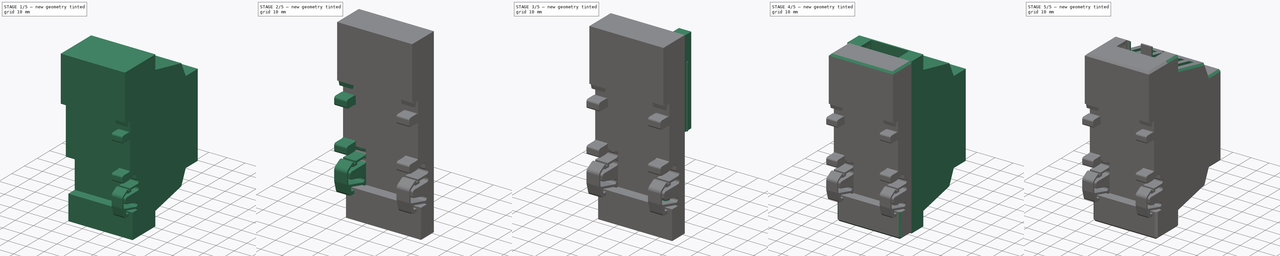
[diagram: build sequence overview — one tinted view per stage of 5, left to right]
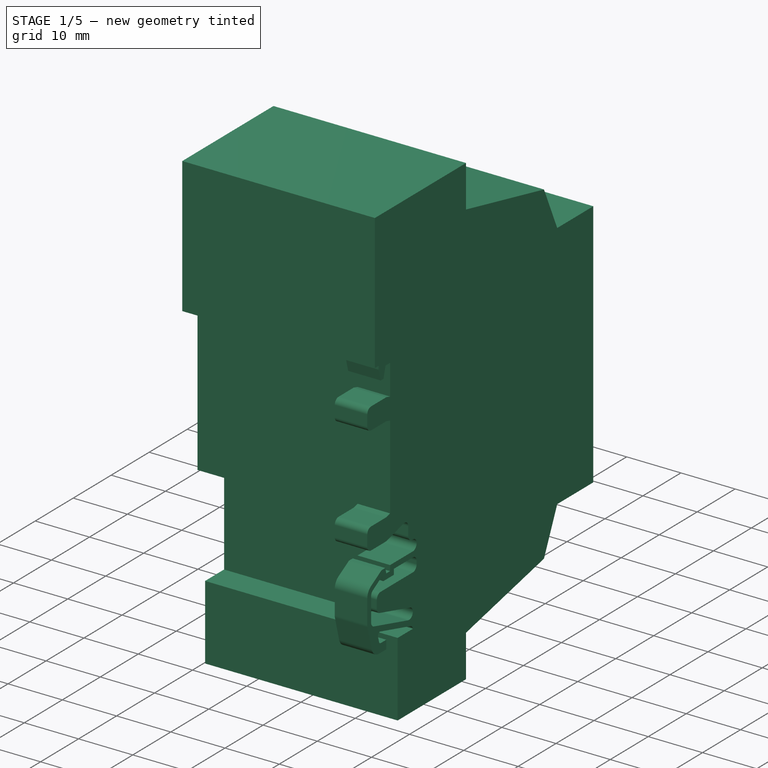
[diagram: stage 1 of 5 — iso view after this stage's code; geometry added in this stage tinted green]
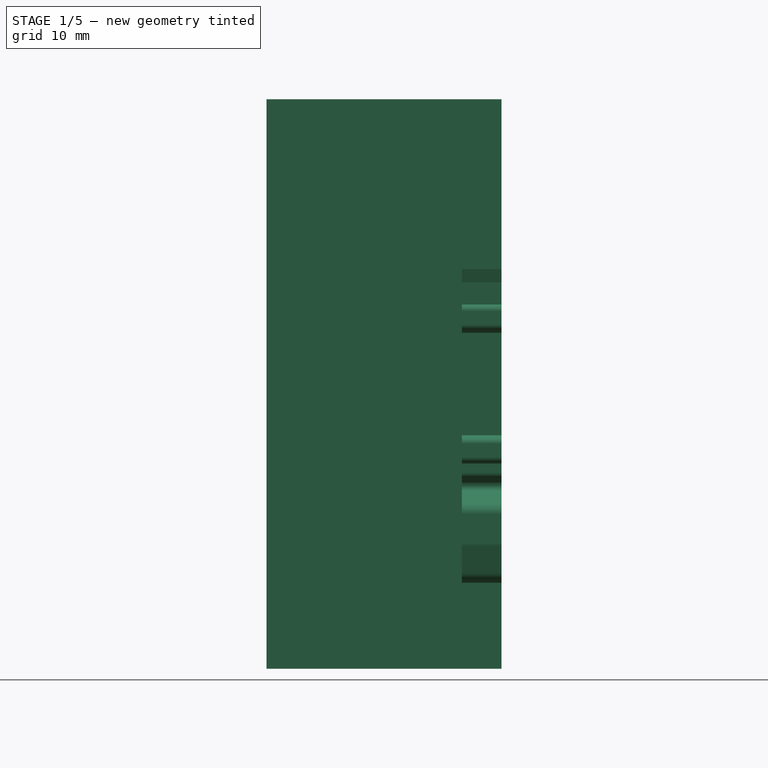
[diagram: stage 1 of 5 — front view after this stage's code; geometry added in this stage tinted green]
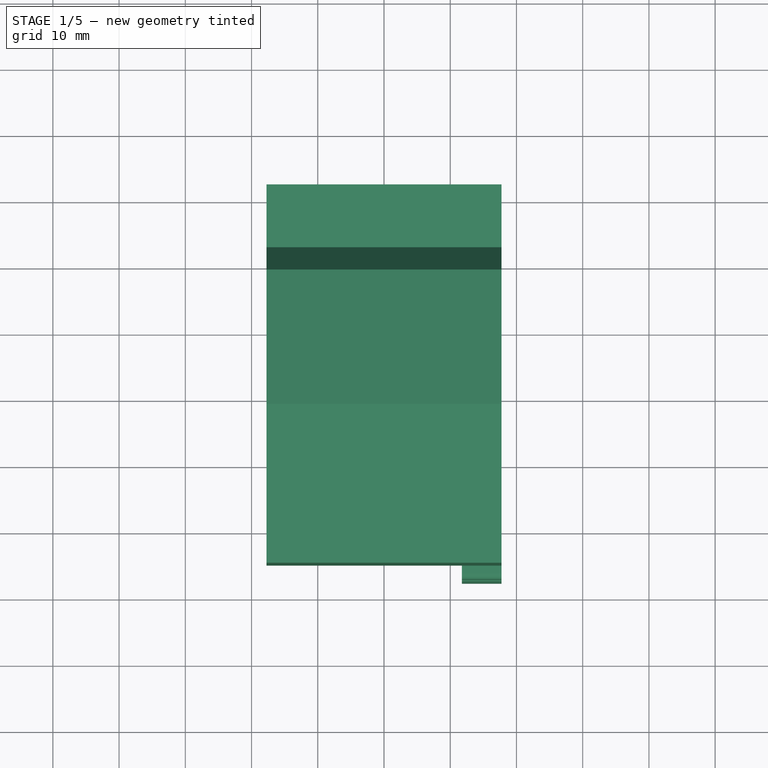
[diagram: stage 1 of 5 — top view after this stage's code; geometry added in this stage tinted green]
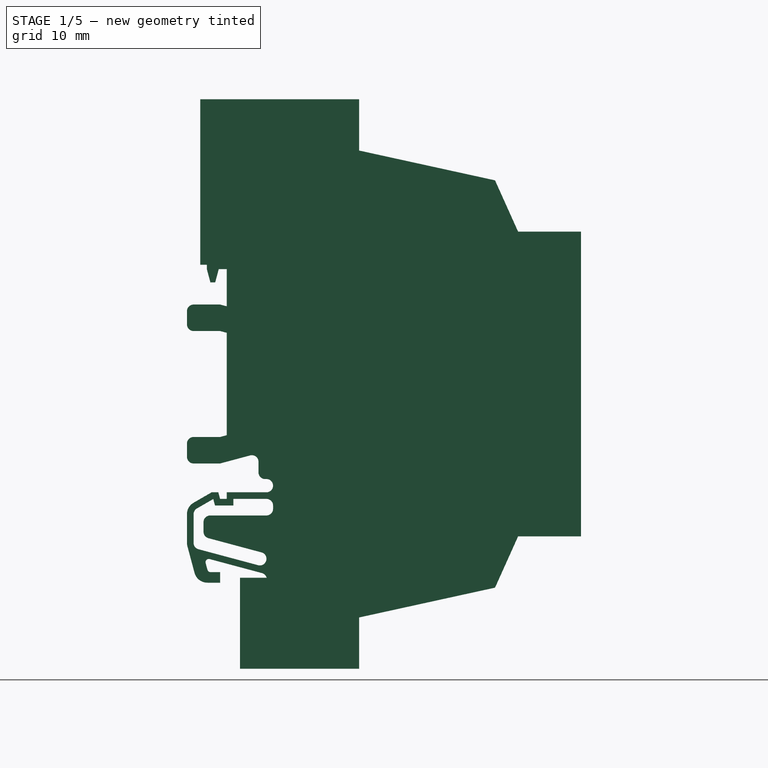
[diagram: stage 1 of 5 — right view after this stage's code; geometry added in this stage tinted green]
FCSTD DOCUMENT  (FreeCAD 0.20R24436 (Git))
Label: LasS0
License: All rights reserved
LicenseURL: http://en.wikipedia.org/wiki/All_rights_reserved
objects: Sketcher::SketchObject×20, PartDesign::Pocket×15, Part::Feature×12, App::Part×10, PartDesign::Pad×7, PartDesign::Body×5, PartDesign::Mirrored×5, PartDesign::FeatureBase×4, Part::Fuse×2, PartDesign::Plane×2, PartDesign::MultiTransform×2, PartDesign::Chamfer×2, App::DocumentObjectGroup×1, PartDesign::Thickness×1
note: 102 computed .brp shape members not serialized (recipe doc carries the construction recipe); baked Part::Feature solids carry a one-line shape summary decoded from their .brp

FEATURE [Part::Feature] Part__Feature  label="Imported Cable Clamp"
  shape: bbox 6 x 16 x 60 mm, 113 faces (baked)
FEATURE [PartDesign::FeatureBase] BaseFeature  label="ImportedBase"
  BaseFeature = -> Part__Feature
FEATURE [Sketcher::SketchObject] Sketch
  ExternalGeometry = -> [BaseFeature]
  FullyConstrained = true
  MapMode = 5
  Placement = pos=(-3,0,0) rot=(0.57735,-0.57735,-0.57735;2.0944rad)
  Support = -> [BaseFeature]
  sketch-geometry (14):
    g0: LineSegment StartX=-8.91 StartY=-12.47 StartZ=0 EndX=-5.5 EndY=-12.47 EndZ=0
    g1: LineSegment StartX=-5.5 StartY=-12.47 StartZ=0 EndX=-5.5 EndY=21.48 EndZ=0
    g2: LineSegment StartX=-5.5 StartY=21.48 StartZ=0 EndX=-8.91 EndY=21.48 EndZ=0
    g3: LineSegment StartX=-8.91 StartY=21.48 StartZ=0 EndX=-8.91 EndY=-12.47 EndZ=0
    g4: LineSegment StartX=-4.8 StartY=13.55 StartZ=0 EndX=-4.8 EndY=28.8 EndZ=0
    g5: LineSegment StartX=-3.1547 StartY=28.8 StartZ=0 EndX=-4.8 EndY=28.8 EndZ=0
    g6: LineSegment StartX=-2.46188 StartY=28.4 StartZ=0 EndX=1.69282 EndY=21.2038 EndZ=0
    g7: LineSegment StartX=1.8 StartY=20.8038 StartZ=0 EndX=1.8 EndY=18.55 EndZ=0
    g8: LineSegment StartX=1.8 StartY=18.55 StartZ=0 EndX=-1.2 EndY=18.55 EndZ=0
    g9: LineSegment StartX=-1.2 StartY=14.35 StartZ=0 EndX=-1.2 EndY=18.55 EndZ=0
    g10: LineSegment StartX=-4.8 StartY=13.55 StartZ=0 EndX=-2 EndY=13.55 EndZ=0
    g11: ArcOfCircle CenterX=-2 CenterY=14.35 CenterZ=0 NormalX=0 NormalY=0 NormalZ=1 AngleXU=0 Radius=0.8 StartAngle=4.71239 EndAngle=6.28319
    g12: ArcOfCircle CenterX=-3.1547 CenterY=28 CenterZ=0 NormalX=0 NormalY=0 NormalZ=1 AngleXU=0 Radius=0.8 StartAngle=0.523599 EndAngle=1.5708
    g13: ArcOfCircle CenterX=1 CenterY=20.8038 CenterZ=0 NormalX=0 NormalY=0 NormalZ=1 AngleXU=0 Radius=0.8 StartAngle=0 EndAngle=0.523599
  constraints (35):
    c: Coincident(g0,g1)
    c: Coincident(g1,g2)
    c: Coincident(g2,g3)
    c: Coincident(g3,g0)
    c: Horizontal(g0)
    c: Horizontal(g2)
    c: Vertical(g1)
    c: Vertical(g3)
    c: DistanceX(g2,g-1) = 8.91
    c: DistanceY(g-1,g2) = 21.48
    c: DistanceX(g0,g-1) = 5.5
    c: DistanceY(g0,g-1) = 12.47
    c: Coincident(g4,g-7)
    c: Coincident(g4,g-6)
    c: Coincident(g5,g-5)
    c: Coincident(g5,g4)
    c: Coincident(g6,g-4)
    c: Coincident(g6,g-12)
    c: Coincident(g7,g-12)
    c: Coincident(g7,g-11)
    c: Coincident(g8,g7)
    c: Coincident(g8,g-10)
    c: Coincident(g9,g-9)
    c: Coincident(g9,g8)
    c: Coincident(g10,g4)
    c: Coincident(g10,g-8)
    c: Coincident(g11,g-8)
    c: Coincident(g11,g10)
    c: Coincident(g11,g9)
    c: Coincident(g12,g-4)
    c: Coincident(g12,g5)
    c: Coincident(g12,g6)
    c: Coincident(g13,g-12)
    c: Coincident(g13,g6)
    c: Coincident(g13,g7)
FEATURE [PartDesign::Pad] Pad  label="HoleFiller"
  BaseFeature = -> BaseFeature
  Direction = (-1,0,0)
  Length = 6
  Length2 = 100
  Profile = -> Sketch
  Refine = true
  Reversed = true
  Type = 0
FEATURE [Sketcher::SketchObject] Sketch001
  FullyConstrained = false
  MapMode = 5
  Placement = pos=(0,-3.33e-14,30) rot=(0,0,1;0rad)
  Support = -> [Pad]
  sketch-geometry (4):
    g0: LineSegment StartX=-3.92834 StartY=9 StartZ=0 EndX=3.92834 EndY=9 EndZ=0
    g1: LineSegment StartX=3.92834 StartY=9 StartZ=0 EndX=3.92834 EndY=12 EndZ=0
    g2: LineSegment StartX=3.92834 StartY=12 StartZ=0 EndX=-3.92834 EndY=12 EndZ=0
    g3: LineSegment StartX=-3.92834 StartY=12 StartZ=0 EndX=-3.92834 EndY=9 EndZ=0
  constraints (10):
    c: Coincident(g0,g1)
    c: Coincident(g1,g2)
    c: Coincident(g2,g3)
    c: Coincident(g3,g0)
    c: Horizontal(g2)
    c: Vertical(g1)
    c: Vertical(g3)
    c: Symmetric(g0,g0,g-2)
    c: DistanceY(g3,g3) = 3
    c: DistanceY(g-1,g0) = 9
FEATURE [PartDesign::Pocket] Pocket
  BaseFeature = -> Pad
  Length = 5
  Length2 = 100
  Profile = -> Sketch001
  Refine = true
  Type = 1
FEATURE [PartDesign::Body] Body  label="Edited Cable Clamp"
  BaseFeature = -> Part__Feature
  Group = -> [BaseFeature,Sketch,Pad,Sketch001,Pocket]
  Origin = -> Origin
  Placement = pos=(14.75,18.1,0) rot=(0,0,1;0rad)
  Tip = -> Pocket
FEATURE [Sketcher::SketchObject] Sketch002
  FullyConstrained = true
  MapMode = 5
  Placement = pos=(0,0,0) rot=(0.57735,0.57735,0.57735;2.0944rad)
  Support = -> [YZ_Plane036]
  sketch-geometry (10):
    g0: LineSegment StartX=4 StartY=0 StartZ=0 EndX=4 EndY=18 EndZ=0
    g1: LineSegment StartX=4 StartY=18 StartZ=0 EndX=0 EndY=18 EndZ=0
    g2: LineSegment StartX=0 StartY=18 StartZ=0 EndX=0 EndY=43 EndZ=0
    g3: LineSegment StartX=0 StartY=43 StartZ=0 EndX=24 EndY=43 EndZ=0
    g4: LineSegment StartX=24 StartY=43 StartZ=0 EndX=24 EndY=35.25 EndZ=0
    g5: LineSegment StartX=24 StartY=35.25 StartZ=0 EndX=44.5133 EndY=30.7511 EndZ=0
    g6: LineSegment StartX=44.5133 StartY=30.7511 StartZ=0 EndX=48 EndY=23 EndZ=0
    g7: LineSegment StartX=48 StartY=23 StartZ=0 EndX=57.5 EndY=23 EndZ=0
    g8: LineSegment StartX=57.5 StartY=23 StartZ=0 EndX=57.5 EndY=0 EndZ=0
    g9: LineSegment StartX=4 StartY=0 StartZ=0 EndX=57.5 EndY=0 EndZ=0
  constraints (30):
    c: PointOnObject(g0,g-1)
    c: Vertical(g0)
    c: Coincident(g0,g1)
    c: PointOnObject(g1,g-2)
    c: Horizontal(g1)
    c: Coincident(g1,g2)
    c: PointOnObject(g2,g-2)
    c: Coincident(g2,g3)
    c: Horizontal(g3)
    c: Coincident(g3,g4)
    c: Vertical(g4)
    c: Coincident(g4,g5)
    c: Coincident(g5,g6)
    c: Coincident(g6,g7)
    c: Horizontal(g7)
    c: Coincident(g7,g8)
    c: PointOnObject(g8,g-1)
    c: Vertical(g8)
    c: Coincident(g9,g0)
    c: Coincident(g9,g8)
    c: DistanceY(g-1,g1) = 18
    c: DistanceX(g1,g1) = 4
    c: DistanceX(g3,g3) = 24
    c: DistanceY(g8,g8) = 23
    c: DistanceX(g-1,g8) = 57.5
    c: DistanceX(g7,g7) = 9.5
    c: Angle(g7,g6) = 1.99352
    c: Angle(g5,g6) = 2.20941
    c: DistanceY(g6,g4) = 12.25
    c: DistanceY(g-1,g2) = 43
FEATURE [PartDesign::Pad] Pad001
  Direction = (1,-2e-16,3e-16)
  Length = 35.5
  Length2 = 100
  Midplane = true
  Placement = pos=(0,0,0) rot=(0.57735,0.57735,0.57735;2.0944rad)
  Profile = -> Sketch002
  Refine = true
  Type = 0
FEATURE [PartDesign::Mirrored] Mirrored
  BaseFeature = -> Pad001
  MirrorPlane = -> XY_Plane036
  Originals = -> [Pad001]
  Overlap = 0
  Placement = pos=(0,0,0) rot=(0.57735,0.57735,0.57735;2.0944rad)
  Refine = true
FEATURE [Sketcher::SketchObject] Sketch003
  FullyConstrained = true
  MapMode = 5
  Placement = pos=(17.75,3e-15,5.5e-15) rot=(0.57735,0.57735,0.57735;2.0944rad)
  Support = -> [Mirrored]
  sketch-geometry (6):
    g0: LineSegment StartX=11 StartY=-29.25 StartZ=0 EndX=11 EndY=-10 EndZ=0
    g1: LineSegment StartX=11 StartY=-10 StartZ=0 EndX=0 EndY=-10 EndZ=0
    g2: LineSegment StartX=0 StartY=-10 StartZ=0 EndX=0 EndY=-44.25 EndZ=0
    g3: LineSegment StartX=0 StartY=-44.25 StartZ=0 EndX=6 EndY=-44.25 EndZ=0
    g4: LineSegment StartX=6 StartY=-44.25 StartZ=0 EndX=6 EndY=-29.25 EndZ=0
    g5: LineSegment StartX=11 StartY=-29.25 StartZ=0 EndX=6 EndY=-29.25 EndZ=0
  constraints (18):
    c: Coincident(g0,g1)
    c: Coincident(g1,g2)
    c: Horizontal(g1)
    c: Vertical(g0)
    c: Vertical(g2)
    c: PointOnObject(g2,g-2)
    c: DistanceX(g2,g0) = 11
    c: DistanceY(g1,g-1) = 10
    c: DistanceY(g2,g-1) = 44.25
    c: Coincident(g3,g2)
    c: Horizontal(g3)
    c: Coincident(g4,g3)
    c: Vertical(g4)
    c: Coincident(g5,g0)
    c: Coincident(g5,g4)
    c: Horizontal(g5)
    c: DistanceX(g5,g5) = 5
    c: DistanceY(g4,g4) = 15
FEATURE [PartDesign::Pocket] Pocket001
  BaseFeature = -> Mirrored
  Length = 5
  Length2 = 100
  Placement = pos=(0,0,0) rot=(0.57735,0.57735,0.57735;2.0944rad)
  Profile = -> Sketch003
  Refine = true
  Type = 1
FEATURE [PartDesign::Body] Body002  label="Edited Cable Clamp001"
  BaseFeature = -> Part__Feature036
  Group = -> [BaseFeature001,Sketch004,Pad002,Sketch005,Pocket002]
  Origin = -> Origin037
  Placement = pos=(-14.75,18.1,0) rot=(0,0,1;0rad)
  Tip = -> Pocket002
FEATURE [Part::Fuse] Fusion
  Base = -> Body
  Refine = true
  Tool = -> Body001
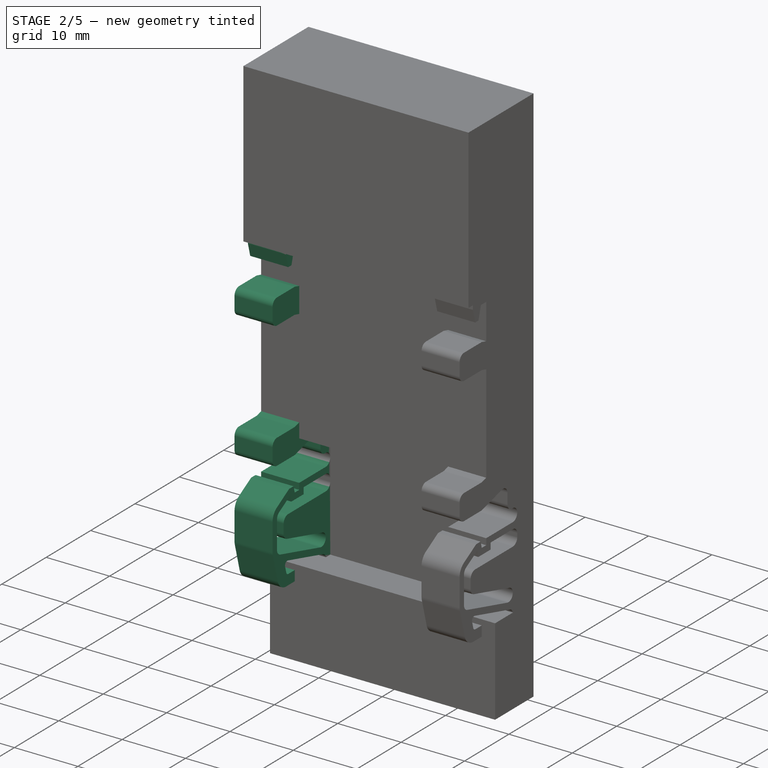
[diagram: stage 2 of 5 — iso view after this stage's code; geometry added in this stage tinted green]
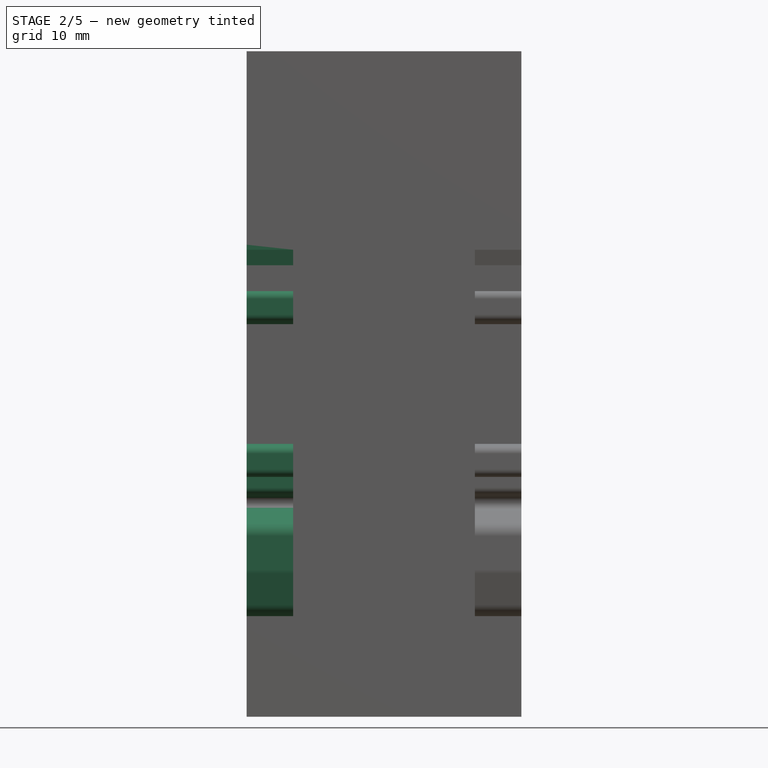
[diagram: stage 2 of 5 — front view after this stage's code; geometry added in this stage tinted green]
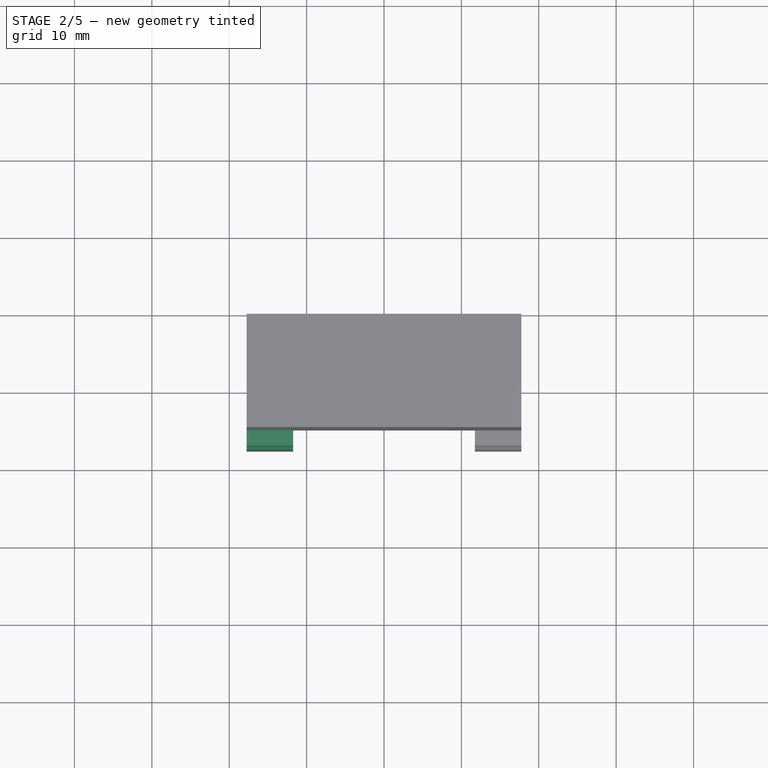
[diagram: stage 2 of 5 — top view after this stage's code; geometry added in this stage tinted green]
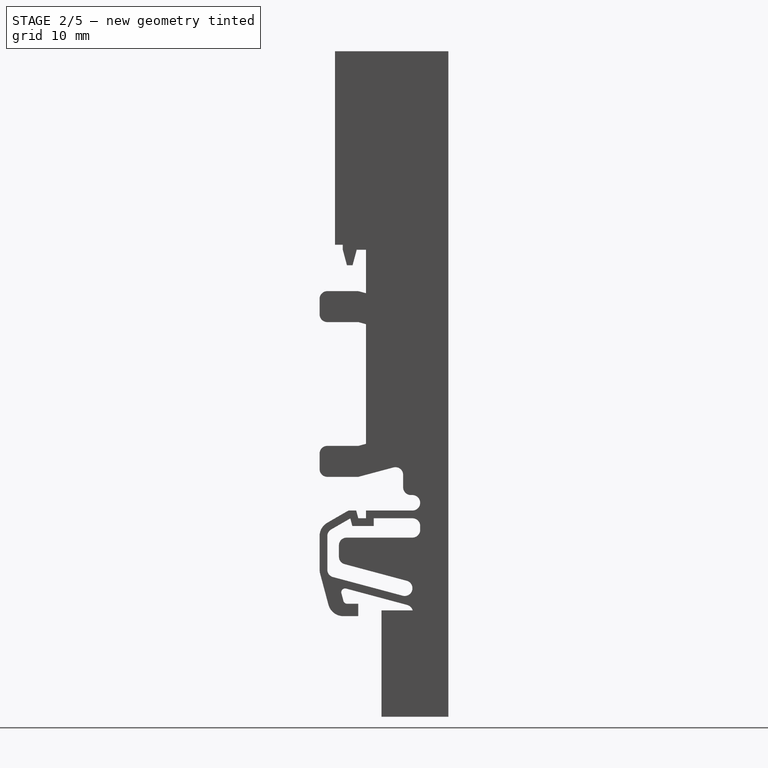
[diagram: stage 2 of 5 — right view after this stage's code; geometry added in this stage tinted green]
FEATURE [PartDesign::Body] Body001  label="LoxBody"
  Group = -> [Sketch002,Pad001,Mirrored,Sketch003,Pocket001]
  Origin = -> Origin036
  Placement = pos=(0,14.1,0) rot=(0,0,1;0rad)
  Tip = -> Pocket001
FEATURE [Part::Feature] Part__Feature036  label="Imported Cable Clamp001"
  shape: bbox 6 x 16 x 60 mm, 113 faces (baked)
FEATURE [PartDesign::FeatureBase] BaseFeature001  label="ImportedBase001"
  BaseFeature = -> Part__Feature036
FEATURE [Sketcher::SketchObject] Sketch004
  ExternalGeometry = -> [BaseFeature001]
  FullyConstrained = true
  MapMode = 5
  Placement = pos=(-3,0,0) rot=(0.57735,-0.57735,-0.57735;2.0944rad)
  Support = -> [BaseFeature001]
  sketch-geometry (14):
    g0: LineSegment StartX=-8.91 StartY=-12.47 StartZ=0 EndX=-5.5 EndY=-12.47 EndZ=0
    g1: LineSegment StartX=-5.5 StartY=-12.47 StartZ=0 EndX=-5.5 EndY=21.48 EndZ=0
    g2: LineSegment StartX=-5.5 StartY=21.48 StartZ=0 EndX=-8.91 EndY=21.48 EndZ=0
    g3: LineSegment StartX=-8.91 StartY=21.48 StartZ=0 EndX=-8.91 EndY=-12.47 EndZ=0
    g4: LineSegment StartX=-4.8 StartY=13.55 StartZ=0 EndX=-4.8 EndY=28.8 EndZ=0
    g5: LineSegment StartX=-3.1547 StartY=28.8 StartZ=0 EndX=-4.8 EndY=28.8 EndZ=0
    g6: LineSegment StartX=-2.46188 StartY=28.4 StartZ=0 EndX=1.69282 EndY=21.2038 EndZ=0
    g7: LineSegment StartX=1.8 StartY=20.8038 StartZ=0 EndX=1.8 EndY=18.55 EndZ=0
    g8: LineSegment StartX=1.8 StartY=18.55 StartZ=0 EndX=-1.2 EndY=18.55 EndZ=0
    g9: LineSegment StartX=-1.2 StartY=14.35 StartZ=0 EndX=-1.2 EndY=18.55 EndZ=0
    g10: LineSegment StartX=-4.8 StartY=13.55 StartZ=0 EndX=-2 EndY=13.55 EndZ=0
    g11: ArcOfCircle CenterX=-2 CenterY=14.35 CenterZ=0 NormalX=0 NormalY=0 NormalZ=1 AngleXU=0 Radius=0.8 StartAngle=4.71239 EndAngle=6.28319
    g12: ArcOfCircle CenterX=-3.1547 CenterY=28 CenterZ=0 NormalX=0 NormalY=0 NormalZ=1 AngleXU=0 Radius=0.8 StartAngle=0.523599 EndAngle=1.5708
    g13: ArcOfCircle CenterX=1 CenterY=20.8038 CenterZ=0 NormalX=0 NormalY=0 NormalZ=1 AngleXU=0 Radius=0.8 StartAngle=0 EndAngle=0.523599
  constraints (35):
    c: Coincident(g0,g1)
    c: Coincident(g1,g2)
    c: Coincident(g2,g3)
    c: Coincident(g3,g0)
    c: Horizontal(g0)
    c: Horizontal(g2)
    c: Vertical(g1)
    c: Vertical(g3)
    c: DistanceX(g2,g-1) = 8.91
    c: DistanceY(g-1,g2) = 21.48
    c: DistanceX(g0,g-1) = 5.5
    c: DistanceY(g0,g-1) = 12.47
    c: Coincident(g4,g-7)
    c: Coincident(g4,g-6)
    c: Coincident(g5,g-5)
    c: Coincident(g5,g4)
    c: Coincident(g6,g-4)
    c: Coincident(g6,g-12)
    c: Coincident(g7,g-12)
    c: Coincident(g7,g-11)
    c: Coincident(g8,g7)
    c: Coincident(g8,g-10)
    c: Coincident(g9,g-9)
    c: Coincident(g9,g8)
    c: Coincident(g10,g4)
    c: Coincident(g10,g-8)
    c: Coincident(g11,g-8)
    c: Coincident(g11,g10)
    c: Coincident(g11,g9)
    c: Coincident(g12,g-4)
    c: Coincident(g12,g5)
    c: Coincident(g12,g6)
    c: Coincident(g13,g-12)
    c: Coincident(g13,g6)
    c: Coincident(g13,g7)
FEATURE [PartDesign::Pad] Pad002  label="HoleFiller001"
  BaseFeature = -> BaseFeature001
  Direction = (-1,0,0)
  Length = 6
  Length2 = 100
  Profile = -> Sketch004
  Refine = true
  Reversed = true
  Type = 0
FEATURE [Sketcher::SketchObject] Sketch005
  FullyConstrained = false
  MapMode = 5
  Placement = pos=(0,-3.33e-14,30) rot=(0,0,1;0rad)
  Support = -> [Pad002]
  sketch-geometry (4):
    g0: LineSegment StartX=-3.92834 StartY=9 StartZ=0 EndX=3.92834 EndY=9 EndZ=0
    g1: LineSegment StartX=3.92834 StartY=9 StartZ=0 EndX=3.92834 EndY=12 EndZ=0
    g2: LineSegment StartX=3.92834 StartY=12 StartZ=0 EndX=-3.92834 EndY=12 EndZ=0
    g3: LineSegment StartX=-3.92834 StartY=12 StartZ=0 EndX=-3.92834 EndY=9 EndZ=0
  constraints (10):
    c: Coincident(g0,g1)
    c: Coincident(g1,g2)
    c: Coincident(g2,g3)
    c: Coincident(g3,g0)
    c: Horizontal(g2)
    c: Vertical(g1)
    c: Vertical(g3)
    c: Symmetric(g0,g0,g-2)
    c: DistanceY(g3,g3) = 3
    c: DistanceY(g-1,g0) = 9
FEATURE [PartDesign::Pocket] Pocket002
  BaseFeature = -> Pad002
  Length = 5
  Length2 = 100
  Profile = -> Sketch005
  Refine = true
  Type = 1
FEATURE [Part::Fuse] Fusion001
  Base = -> Body002
  Refine = true
  Tool = -> Fusion
FEATURE [App::DocumentObjectGroup] Group  label="Trash"
  Group = -> [Part__Feature,Part__Feature036,Fusion001]
FEATURE [PartDesign::FeatureBase] BaseFeature002
  BaseFeature = -> Fusion001
FEATURE [PartDesign::FeatureBase] Clone
  BaseFeature = -> BaseFeature002
FEATURE [Sketcher::SketchObject] Sketch007
  FullyConstrained = true
  MapMode = 5
  Placement = pos=(0,28.75,6.4e-15) rot=(1,0,0;1.5708rad)
  Support = -> [DatumPlane001]
  sketch-geometry (4):
    g0: LineSegment StartX=-50 StartY=50 StartZ=0 EndX=50 EndY=50 EndZ=0
    g1: LineSegment StartX=50 StartY=50 StartZ=0 EndX=50 EndY=-50 EndZ=0
    g2: LineSegment StartX=50 StartY=-50 StartZ=0 EndX=-50 EndY=-50 EndZ=0
    g3: LineSegment StartX=-50 StartY=-50 StartZ=0 EndX=-50 EndY=50 EndZ=0
  constraints (10):
    c: Coincident(g0,g1)
    c: Coincident(g1,g2)
    c: Coincident(g2,g3)
    c: Coincident(g3,g0)
    c: Horizontal(g2)
    c: Vertical(g3)
    c: Equal(g1,g0)
    c: Distance(g0) = 100
    c: Symmetric(g0,g0,g-2)
    c: Symmetric(g1,g0,g-1)
FEATURE [PartDesign::Pocket] Pocket004
  BaseFeature = -> Clone
  Length = 500
  Length2 = 100
  Profile = -> Sketch007
  Refine = true
  Type = 0
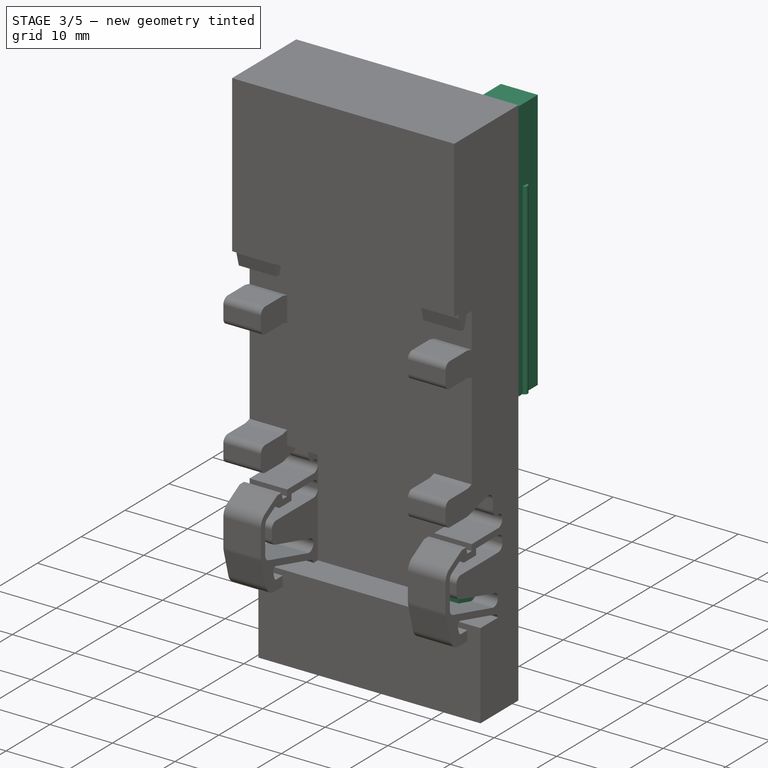
[diagram: stage 3 of 5 — iso view after this stage's code; geometry added in this stage tinted green]
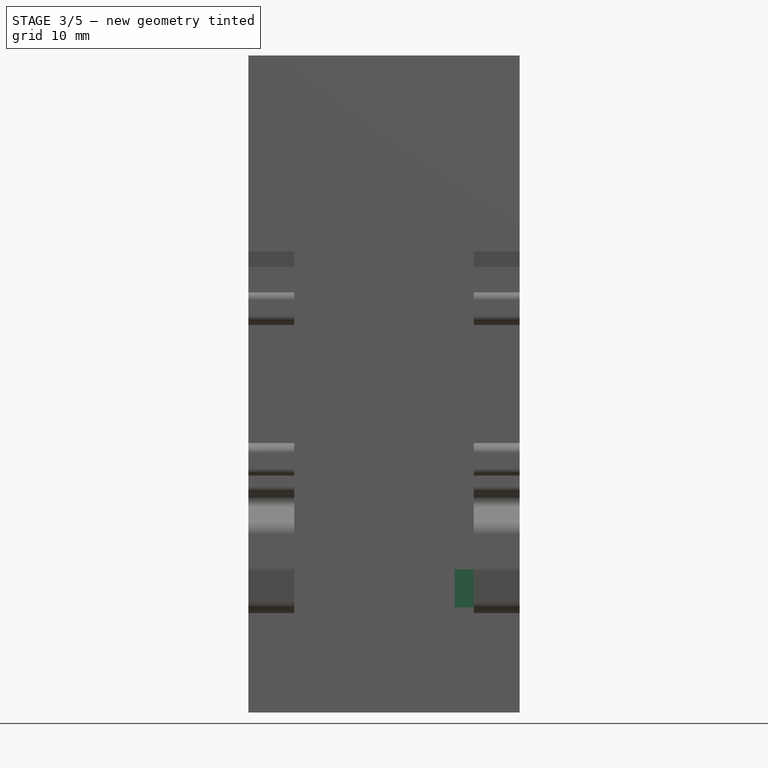
[diagram: stage 3 of 5 — front view after this stage's code; geometry added in this stage tinted green]
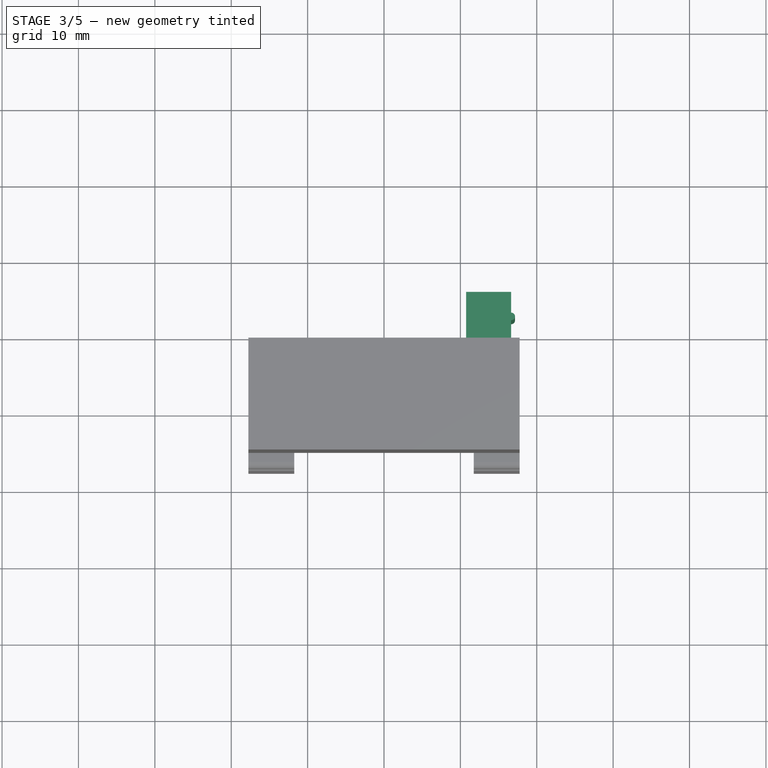
[diagram: stage 3 of 5 — top view after this stage's code; geometry added in this stage tinted green]
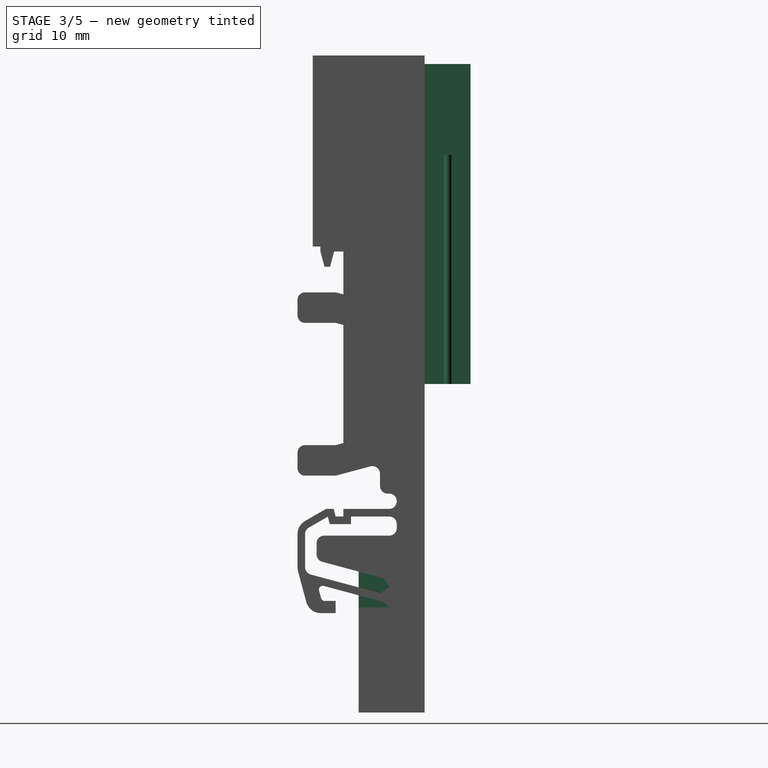
[diagram: stage 3 of 5 — right view after this stage's code; geometry added in this stage tinted green]
FEATURE [Sketcher::SketchObject] Sketch008
  FullyConstrained = true
  MapMode = 5
  Placement = pos=(0,28.75,-6e-15) rot=(0,0.707107,0.707107;3.14159rad)
  Support = -> [Pocket004]
  sketch-geometry (4):
    g0: LineSegment StartX=-15.75 StartY=41 StartZ=0 EndX=15.75 EndY=41 EndZ=0
    g1: LineSegment StartX=15.75 StartY=41 StartZ=0 EndX=15.75 EndY=-41 EndZ=0
    g2: LineSegment StartX=15.75 StartY=-41 StartZ=0 EndX=-15.75 EndY=-41 EndZ=0
    g3: LineSegment StartX=-15.75 StartY=-41 StartZ=0 EndX=-15.75 EndY=41 EndZ=0
  constraints (10):
    c: Coincident(g0,g1)
    c: Coincident(g1,g2)
    c: Coincident(g2,g3)
    c: Coincident(g3,g0)
    c: Horizontal(g2)
    c: Vertical(g3)
    c: Symmetric(g0,g0,g-2)
    c: Symmetric(g0,g1,g-1)
    c: DistanceX(g0,g0) = 31.5
    c: DistanceY(g1,g1) = 82
FEATURE [PartDesign::Pocket] Pocket005
  BaseFeature = -> Pocket004
  Length = 1.6
  Length2 = 100
  Profile = -> Sketch008
  Refine = true
  Type = 0
FEATURE [Sketcher::SketchObject] Sketch009
  FullyConstrained = true
  MapMode = 5
  Placement = pos=(0,27.15,-7.1e-15) rot=(0,0.707107,0.707107;3.14159rad)
  Support = -> [Pocket005]
  sketch-geometry (8):
    g0: LineSegment StartX=-11 StartY=35.5 StartZ=0 EndX=11 EndY=35.5 EndZ=0
    g1: LineSegment StartX=11 StartY=35.5 StartZ=0 EndX=11 EndY=30.5 EndZ=0
    g2: LineSegment StartX=11 StartY=30.5 StartZ=0 EndX=-11 EndY=30.5 EndZ=0
    g3: LineSegment StartX=-11 StartY=30.5 StartZ=0 EndX=-11 EndY=35.5 EndZ=0
    g4: LineSegment StartX=-11 StartY=-30.5 StartZ=0 EndX=11 EndY=-30.5 EndZ=0
    g5: LineSegment StartX=11 StartY=-30.5 StartZ=0 EndX=11 EndY=-35.5 EndZ=0
    g6: LineSegment StartX=11 StartY=-35.5 StartZ=0 EndX=-11 EndY=-35.5 EndZ=0
    g7: LineSegment StartX=-11 StartY=-35.5 StartZ=0 EndX=-11 EndY=-30.5 EndZ=0
  constraints (22):
    c: Coincident(g0,g1)
    c: Coincident(g1,g2)
    c: Coincident(g2,g3)
    c: Coincident(g3,g0)
    c: Horizontal(g0)
    c: Vertical(g1)
    c: Vertical(g3)
    c: Coincident(g4,g5)
    c: Coincident(g5,g6)
    c: Coincident(g6,g7)
    c: Coincident(g7,g4)
    c: Horizontal(g4)
    c: Horizontal(g6)
    c: Vertical(g5)
    c: Vertical(g7)
    c: Symmetric(g2,g1,g-2)
    c: Vertical(g4,g2)
    c: DistanceY(g3,g3) = 5
    c: Symmetric(g1,g4,g-1)
    c: DistanceX(g0,g0) = 22
    c: Equal(g5,g1)
    c: DistanceY(g5,g0) = 71
FEATURE [PartDesign::Pocket] Pocket006
  BaseFeature = -> Pocket005
  Length = 4
  Length2 = 100
  Profile = -> Sketch009
  Refine = true
  Type = 0
FEATURE [Sketcher::SketchObject] Sketch010
  FullyConstrained = true
  MapMode = 5
  Placement = pos=(0,27.15,-7.1e-15) rot=(0,0.707107,0.707107;3.14159rad)
  Support = -> [Pocket006]
  expr: Constraints[4] = 23.3 / 2
  sketch-geometry (2):
    g0: Circle CenterX=11.65 CenterY=28 CenterZ=0 NormalX=0 NormalY=0 NormalZ=1 AngleXU=0 Radius=0.75
    g1: Circle CenterX=-11.65 CenterY=-28 CenterZ=0 NormalX=0 NormalY=0 NormalZ=1 AngleXU=0 Radius=0.75
  constraints (6):
    c: Equal(g1,g0)
    c: Diameter(g0) = 1.5
    c: DistanceY(g1,g-1) = 28
    c: DistanceX(g1,g-1) = 11.65
    c: DistanceX(g-1,g0) = 11.65
    c: DistanceY(g-1,g0) = 28
FEATURE [Sketcher::SketchObject] Sketch011
  ExternalGeometry = -> [Pocket006]
  FullyConstrained = true
  MapMode = 5
  Placement = pos=(1.64e-14,-1.64e-14,-29.25) rot=(0,0,1;0rad)
  Support = -> [Pocket006]
  sketch-geometry (4):
    g0: LineSegment StartX=9.25 StartY=20.1 StartZ=0 EndX=14.25 EndY=20.1 EndZ=0
    g1: LineSegment StartX=14.25 StartY=20.1 StartZ=0 EndX=14.25 EndY=25.1 EndZ=0
    g2: LineSegment StartX=14.25 StartY=25.1 StartZ=0 EndX=9.25 EndY=25.1 EndZ=0
    g3: LineSegment StartX=9.25 StartY=25.1 StartZ=0 EndX=9.25 EndY=20.1 EndZ=0
  constraints (12):
    c: Coincident(g0,g1)
    c: Coincident(g1,g2)
    c: Coincident(g2,g3)
    c: Coincident(g3,g0)
    c: Horizontal(g0)
    c: Horizontal(g2)
    c: Vertical(g1)
    c: Vertical(g3)
    c: PointOnObject(g0,g-3)
    c: PointOnObject(g2,g-4)
    c: Distance(g0) = 5
    c: Distance(g0,g-5) = 2.5
FEATURE [PartDesign::Pad] Pad003
  BaseFeature = -> Pocket006
  Direction = (-6e-16,6e-16,1)
  Length = 5
  Length2 = 100
  Profile = -> Sketch011
  Refine = true
  Type = 0
FEATURE [PartDesign::Pocket] Pocket007
  BaseFeature = -> Pad003
  Length = 5
  Length2 = 100
  Profile = -> Sketch010
  Refine = true
  Type = 0
FEATURE [Sketcher::SketchObject] Sketch014
  ExternalGeometry = -> [Pocket007]
  FullyConstrained = true
  MapMode = 5
  Placement = pos=(0,28.75,-6e-15) rot=(0,0.707107,0.707107;3.14159rad)
  Support = -> [Pocket007]
  sketch-geometry (6):
    g0: LineSegment StartX=-15.75 StartY=0 StartZ=0 EndX=-16.65 EndY=0 EndZ=0
    g1: LineSegment StartX=-16.65 StartY=0 StartZ=0 EndX=-16.65 EndY=41.9 EndZ=0
    g2: LineSegment StartX=-16.65 StartY=41.9 StartZ=0 EndX=-10.75 EndY=41.9 EndZ=0
    g3: LineSegment StartX=-10.75 StartY=41.9 StartZ=0 EndX=-10.75 EndY=41 EndZ=0
    g4: LineSegment StartX=-10.75 StartY=41 StartZ=0 EndX=-15.75 EndY=41 EndZ=0
    g5: LineSegment StartX=-15.75 StartY=41 StartZ=0 EndX=-15.75 EndY=0 EndZ=0
  constraints (17):
    c: PointOnObject(g0,g-1)
    c: PointOnObject(g0,g-1)
    c: Coincident(g0,g1)
    c: Vertical(g1)
    c: Coincident(g1,g2)
    c: Horizontal(g2)
    c: Coincident(g2,g3)
    c: Coincident(g3,g4)
    c: Horizontal(g4)
    c: Coincident(g4,g5)
    c: Coincident(g5,g0)
    c: Vertical(g5)
    c: Coincident(g-4,g4)
    c: DistanceY(g4,g1) = 0.9
    c: DistanceX(g1,g4) = 0.9
    c: Vertical(g3)
    c: Distance(g4) = 5
FEATURE [PartDesign::Pad] Pad004  label="Wall"
  BaseFeature = -> Pocket007
  Direction = (0,1,-2e-16)
  Length = 6
  Length2 = 100
  Profile = -> Sketch014
  Refine = true
  Type = 0
FEATURE [Sketcher::SketchObject] Sketch015
  ExternalGeometry = -> [Pad004]
  FullyConstrained = true
  MapMode = 5
  Placement = pos=(0,0,2e-16) rot=(1,0,0;3.14159rad)
  Support = -> [Pad004]
  sketch-geometry (2):
    g0: ArcOfCircle CenterX=16.65 CenterY=-31.75 CenterZ=0 NormalX=0 NormalY=0 NormalZ=1 AngleXU=0 Radius=0.5 StartAngle=4.71239 EndAngle=7.85398
    g1: LineSegment StartX=16.65 StartY=-32.25 StartZ=0 EndX=16.65 EndY=-31.25 EndZ=0
  constraints (6):
    c: Coincident(g1,g0)
    c: Coincident(g1,g0)
    c: Vertical(g1)
    c: PointOnObject(g0,g1)
    c: Diameter(g0) = 1
    c: Symmetric(g-3,g-3,g0)
FEATURE [PartDesign::Pad] Pad005  label="Pin"
  BaseFeature = -> Pad004
  Direction = (0,-2e-16,-1)
  Length = 30
  Length2 = 100
  Profile = -> Sketch015
  Refine = true
  Reversed = true
  Type = 0
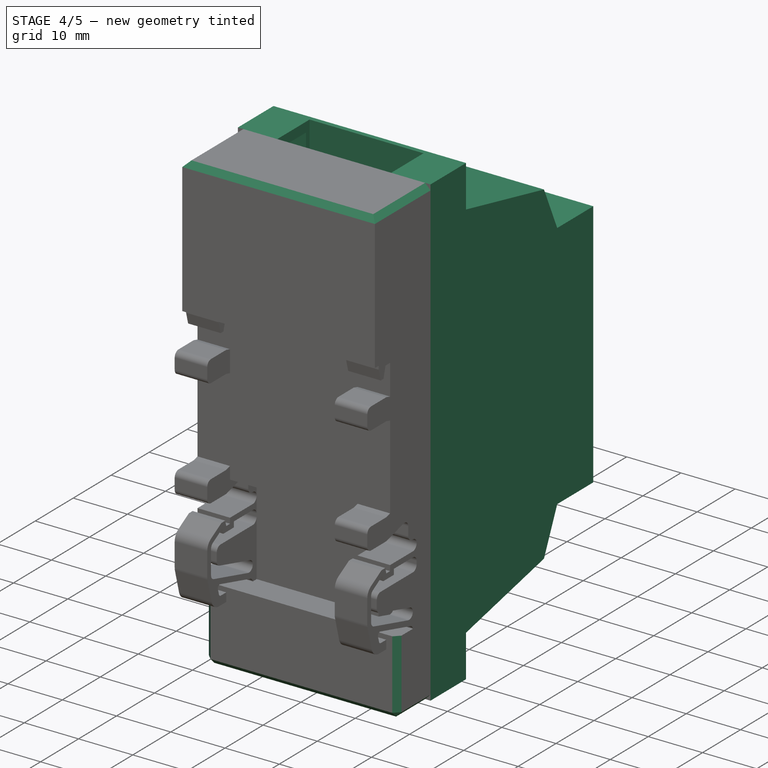
[diagram: stage 4 of 5 — iso view after this stage's code; geometry added in this stage tinted green]
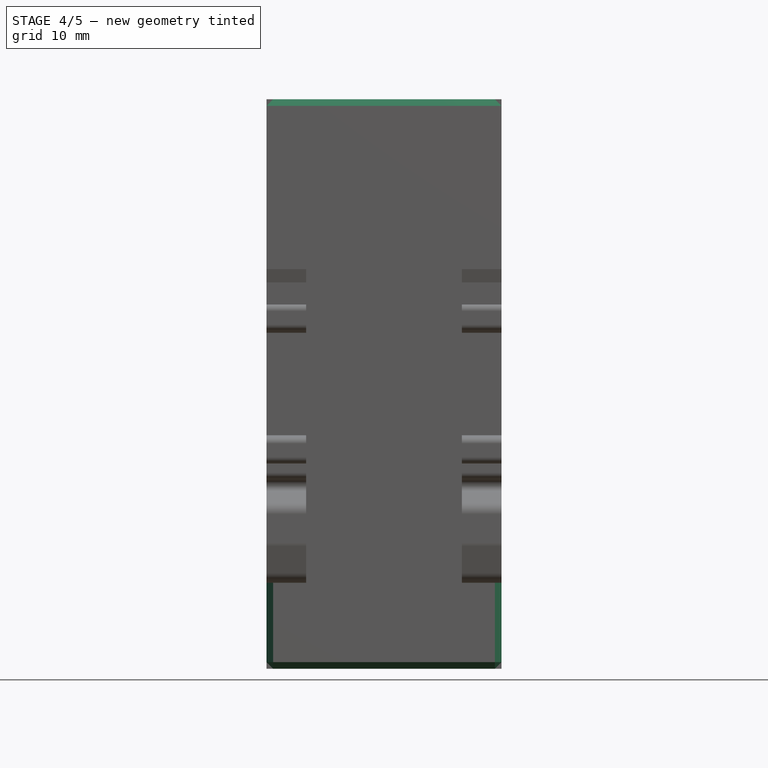
[diagram: stage 4 of 5 — front view after this stage's code; geometry added in this stage tinted green]
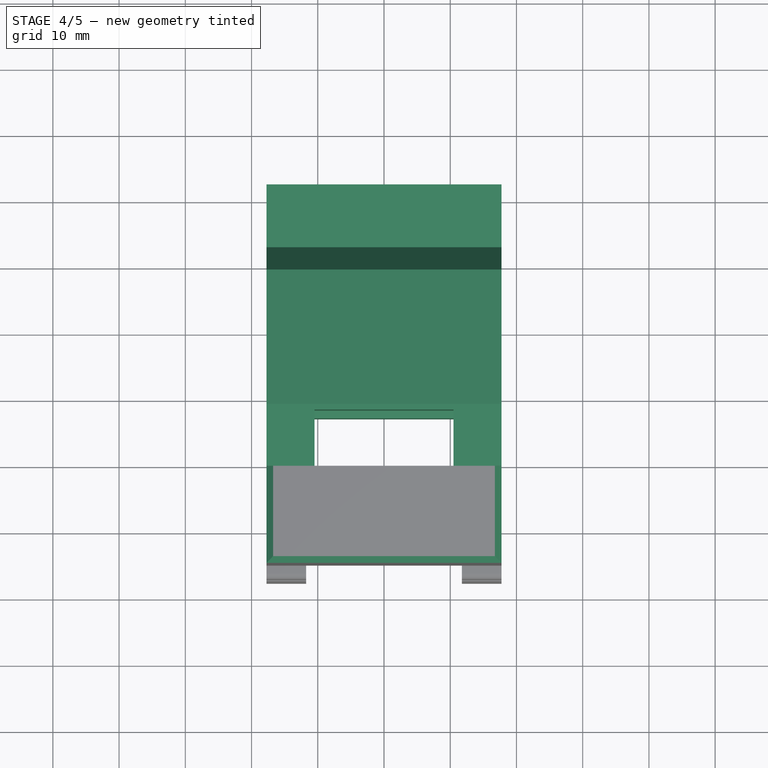
[diagram: stage 4 of 5 — top view after this stage's code; geometry added in this stage tinted green]
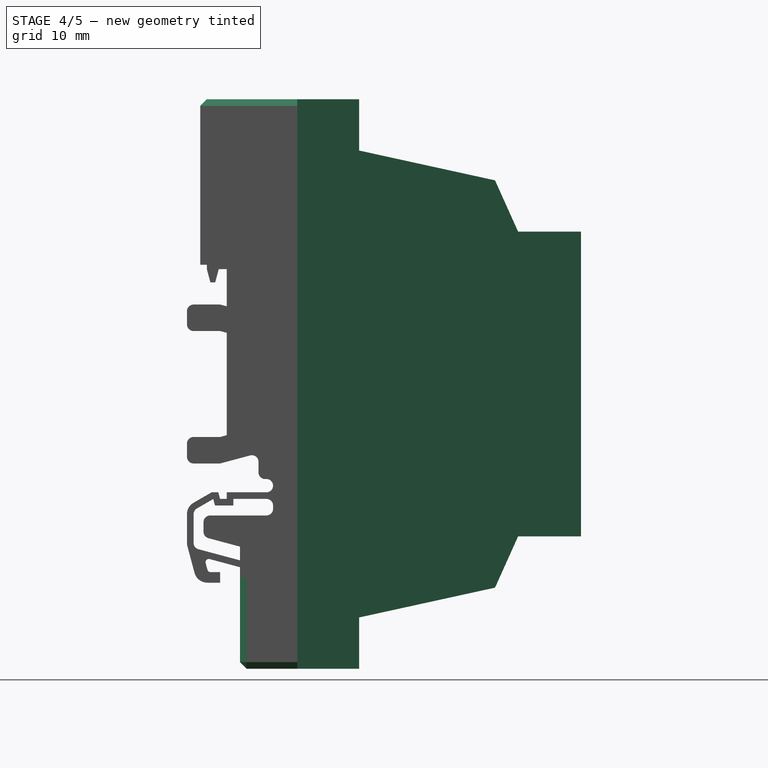
[diagram: stage 4 of 5 — right view after this stage's code; geometry added in this stage tinted green]
FEATURE [PartDesign::Plane] DatumPlane
  AttachmentOffset = pos=(0,0,-28.75) rot=(0,0,1;0rad)
  Length = 63.1149
  MapMode = 5
  Placement = pos=(0,28.75,6.4e-15) rot=(1,0,0;1.5708rad)
  ResizeMode = 0
  Support = -> [XZ_Plane038]
  Width = 99.1149
FEATURE [PartDesign::Plane] DatumPlane001
  AttachmentOffset = pos=(0,0,-28.75) rot=(0,0,1;0rad)
  Length = 63.1149
  MapMode = 5
  Placement = pos=(0,28.75,6.4e-15) rot=(1,0,0;1.5708rad)
  ResizeMode = 0
  Support = -> [XZ_Plane039]
  Width = 99.1149
FEATURE [Sketcher::SketchObject] Sketch006
  FullyConstrained = true
  MapMode = 5
  Placement = pos=(0,28.75,6.4e-15) rot=(1,0,0;1.5708rad)
  Support = -> [DatumPlane]
  sketch-geometry (4):
    g0: LineSegment StartX=-50 StartY=50 StartZ=0 EndX=50 EndY=50 EndZ=0
    g1: LineSegment StartX=50 StartY=50 StartZ=0 EndX=50 EndY=-50 EndZ=0
    g2: LineSegment StartX=50 StartY=-50 StartZ=0 EndX=-50 EndY=-50 EndZ=0
    g3: LineSegment StartX=-50 StartY=-50 StartZ=0 EndX=-50 EndY=50 EndZ=0
  constraints (10):
    c: Coincident(g0,g1)
    c: Coincident(g1,g2)
    c: Coincident(g2,g3)
    c: Coincident(g3,g0)
    c: Horizontal(g2)
    c: Vertical(g3)
    c: Symmetric(g0,g0,g-2)
    c: Symmetric(g1,g0,g-1)
    c: Equal(g1,g0)
    c: Distance(g0) = 100
FEATURE [PartDesign::Pocket] Pocket003
  BaseFeature = -> BaseFeature002
  Length = 500
  Length2 = 100
  Profile = -> Sketch006
  Refine = true
  Reversed = true
  Type = 0
FEATURE [PartDesign::Thickness] Thickness
  Base = -> Pocket003 [Face13]
  BaseFeature = -> Pocket003
  Intersection = false
  Join = 0
  Mode = 0
  Refine = true
  Reversed = true
  SupportTransform = false
  Value = 1.8
FEATURE [Sketcher::SketchObject] Sketch012
  ExternalGeometry = -> [Thickness]
  FullyConstrained = true
  MapMode = 5
  Placement = pos=(-3.1e-14,1.42e-14,43) rot=(0,0,1;0rad)
  Support = -> [Thickness]
  sketch-geometry (4):
    g0: LineSegment StartX=-10.5 StartY=28.75 StartZ=0 EndX=10.5 EndY=28.75 EndZ=0
    g1: LineSegment StartX=10.5 StartY=28.75 StartZ=0 EndX=10.5 EndY=37.25 EndZ=0
    g2: LineSegment StartX=10.5 StartY=37.25 StartZ=0 EndX=-10.5 EndY=37.25 EndZ=0
    g3: LineSegment StartX=-10.5 StartY=37.25 StartZ=0 EndX=-10.5 EndY=28.75 EndZ=0
  constraints (11):
    c: Coincident(g0,g1)
    c: Coincident(g1,g2)
    c: Coincident(g2,g3)
    c: Coincident(g3,g0)
    c: Horizontal(g2)
    c: Vertical(g1)
    c: Vertical(g3)
    c: PointOnObject(g0,g-3)
    c: Symmetric(g0,g0,g-2)
    c: Distance(g0) = 21
    c: Distance(g3) = 8.5
FEATURE [PartDesign::Pocket] Pocket008
  BaseFeature = -> Thickness
  Length = 5
  Length2 = 100
  Profile = -> Sketch012
  Refine = true
  Type = 1
FEATURE [PartDesign::Pocket] Pocket010  label="Cut"
  BaseFeature = -> Pad005
  Length = 20
  Length2 = 100
  Profile = -> Sketch015
  Refine = true
  Type = 0
FEATURE [PartDesign::Mirrored] Mirrored001
  MirrorPlane = -> YZ_Plane039
  Overlap = 0
  Refine = true
FEATURE [PartDesign::Mirrored] Mirrored002
  MirrorPlane = -> XY_Plane039
  Overlap = 0
  Refine = true
FEATURE [PartDesign::MultiTransform] MultiTransform
  BaseFeature = -> Pocket010
  Originals = -> [Pad004,Pad005,Pocket010]
  Overlap = 0
  Refine = true
  Transformations = -> [Mirrored001,Mirrored002]
FEATURE [PartDesign::Chamfer] Chamfer001
  Angle = 45
  Base = -> MultiTransform [Edge180,Edge252,Edge400,Edge250,Edge104,Edge182,Edge105,Edge106]
  BaseFeature = -> MultiTransform
  ChamferType = 0
  FlipDirection = false
  Refine = true
  Size = 1
  Size2 = 1
  SupportTransform = false
FEATURE [PartDesign::Body] Body003  label="Upper"
  BaseFeature = -> Fusion001
  Group = -> [BaseFeature002,DatumPlane,Sketch006,Pocket003,Thickness,Sketch012,Pocket008,Sketch013,Pocket009,Sketch016,Pocket011,Sketch017,Pocket012,Pad006,MultiTransform001,Mirrored003,Mirrored004,Chamfer,Sketch018,Pocket013]
  Origin = -> Origin038
  Tip = -> Pocket013
FEATURE [Sketcher::SketchObject] Sketch019
  FullyConstrained = true
  MapMode = 5
  Placement = pos=(1.91e-14,34.75,0) rot=(0,0.707107,0.707107;3.14159rad)
  Support = -> [Chamfer001]
  sketch-geometry (12):
    g0: LineSegment StartX=-8.9 StartY=20.6 StartZ=0 EndX=-2.4 EndY=20.6 EndZ=0
    g1: LineSegment StartX=-2.4 StartY=20.6 StartZ=0 EndX=-2.4 EndY=11.6 EndZ=0
    g2: LineSegment StartX=-2.4 StartY=11.6 StartZ=0 EndX=-8.9 EndY=11.6 EndZ=0
    g3: LineSegment StartX=-8.9 StartY=11.6 StartZ=0 EndX=-8.9 EndY=20.6 EndZ=0
    g4: LineSegment StartX=11.1 StartY=25.5 StartZ=0 EndX=14.6 EndY=25.5 EndZ=0
    g5: LineSegment StartX=14.6 StartY=25.5 StartZ=0 EndX=14.6 EndY=16.5 EndZ=0
    g6: LineSegment StartX=14.6 StartY=16.5 StartZ=0 EndX=11.1 EndY=16.5 EndZ=0
    g7: LineSegment StartX=11.1 StartY=16.5 StartZ=0 EndX=11.1 EndY=25.5 EndZ=0
    g8: LineSegment StartX=-14.6 StartY=11.7 StartZ=0 EndX=-11.1 EndY=11.7 EndZ=0
    g9: LineSegment StartX=-11.1 StartY=11.7 StartZ=0 EndX=-11.1 EndY=5.2 EndZ=0
    g10: LineSegment StartX=-11.1 StartY=5.2 StartZ=0 EndX=-14.6 EndY=5.2 EndZ=0
    g11: LineSegment StartX=-14.6 StartY=5.2 StartZ=0 EndX=-14.6 EndY=11.7 EndZ=0
  constraints (36):
    c: Coincident(g0,g1)
    c: Coincident(g1,g2)
    c: Coincident(g2,g3)
    c: Coincident(g3,g0)
    c: Horizontal(g0)
    c: Horizontal(g2)
    c: Vertical(g1)
    c: Vertical(g3)
    c: Coincident(g4,g5)
    c: Coincident(g5,g6)
    c: Coincident(g6,g7)
    c: Coincident(g7,g4)
    c: Horizontal(g4)
    c: Horizontal(g6)
    c: Vertical(g5)
    c: Vertical(g7)
    c: Coincident(g8,g9)
    c: Coincident(g9,g10)
    c: Coincident(g10,g11)
    c: Coincident(g11,g8)
    c: Horizontal(g8)
    c: Horizontal(g10)
    c: Vertical(g9)
    c: Vertical(g11)
    c: DistanceX(g10,g-1) = 14.6
    c: DistanceX(g-1,g5) = 14.6
    c: DistanceX(g10,g10) = 3.5
    c: DistanceX(g6,g6) = 3.5
    c: DistanceX(g2,g2) = 6.5
    c: DistanceY(g1,g1) = 9
    c: DistanceY(g-1,g1) = 11.6
    c: DistanceX(g1,g-1) = 2.4
    c: DistanceY(g9,g9) = 6.5
    c: DistanceY(g-1,g9) = 5.2
    c: DistanceY(g7,g7) = 9
    c: DistanceY(g-1,g6) = 16.5
FEATURE [PartDesign::Pocket] Pocket014
  BaseFeature = -> Chamfer001
  Length = 5
  Length2 = 100
  Profile = -> Sketch019
  Refine = true
  Type = 0
FEATURE [PartDesign::Body] Body004  label="Lower"
  BaseFeature = -> BaseFeature002
  Group = -> [Clone,DatumPlane001,Sketch007,Pocket004,Sketch008,Pocket005,Sketch009,Pocket006,Sketch010,Sketch011,Pad003,Pocket007,Sketch014,Pad004,Sketch015,Pad005,Pocket010,MultiTransform,Mirrored001,Mirrored002,Chamfer001,Sketch019,Pocket014]
  Origin = -> Origin039
  Tip = -> Pocket014
FEATURE [Part::Feature] Part__Feature037  label="SOLID"
  shape: bbox 10.16 x 12 x 12.6 mm, 63 faces (baked)
FEATURE [App::Part] Cixi_Kefa_Elec_KF2EDGR_5_08_2P  label="Cixi Kefa Elec KF2EDGR-5.08-2P"
  Group = -> [Part__Feature037]
  Origin = -> Origin040
  Placement = pos=(145.97,-66.99,1.65) rot=(0,0,1;3.14159rad)
FEATURE [Part::Feature] Part__Feature038  label="COMPOUND"
  shape: bbox 12.7 x 18.22 x 15.62 mm, 487 faces, 8 solids (baked)
FEATURE [App::Part] __08_Terminal_2Pin_Plug  label="5.08_Terminal_2Pin_Plug"
  Group = -> [Part__Feature038]
  Origin = -> Origin041
  Placement = pos=(143.43,-51.73,6.28) rot=(0,0,1;3.14159rad)
FEATURE [Part::Feature] Part__Feature039  label="SOLID001"
  shape: bbox 10.16 x 12 x 12.6 mm, 63 faces (baked)
FEATURE [App::Part] Cixi_Kefa_Elec_KF2EDGR_5_08_2P001  label="Cixi Kefa Elec KF2EDGR-5.08-2P001"
  Group = -> [Part__Feature039]
  Origin = -> Origin042
  Placement = pos=(156.13,-66.99,1.65) rot=(0,0,1;3.14159rad)
FEATURE [Part::Feature] Part__Feature040  label="COMPOUND001"
  shape: bbox 12.7 x 18.22 x 15.62 mm, 487 faces, 8 solids (baked)
FEATURE [App::Part] __08_Terminal_2Pin_Plug001  label="5.08_Terminal_2Pin_Plug001"
  Group = -> [Part__Feature040]
  Origin = -> Origin043
  Placement = pos=(153.59,-51.73,6.28) rot=(0,0,1;3.14159rad)
FEATURE [Part::Feature] Part__Feature041  label="SOLID002"
  shape: bbox 10.16 x 12 x 12.6 mm, 63 faces (baked)
FEATURE [App::Part] Cixi_Kefa_Elec_KF2EDGR_5_08_2P002  label="Cixi Kefa Elec KF2EDGR-5.08-2P002"
  Group = -> [Part__Feature041]
  Origin = -> Origin044
  Placement = pos=(140.89,-132.99,1.65) rot=(0,0,1;0rad)
FEATURE [Part::Feature] Part__Feature042  label="COMPOUND002"
  shape: bbox 12.7 x 18.22 x 15.62 mm, 487 faces, 8 solids (baked)
FEATURE [App::Part] __08_Terminal_2Pin_Plug002  label="5.08_Terminal_2Pin_Plug002"
  Group = -> [Part__Feature042]
  Origin = -> Origin045
  Placement = pos=(143.43,-148.25,6.28) rot=(0,0,1;0rad)
FEATURE [Part::Feature] Part__Feature043  label="COMPOUND003"
  shape: bbox 6.6 x 7.1 x 3 mm, 42 faces, 3 solids (baked)
FEATURE [App::Part] Sunltech_SLO0630H
  Group = -> [Part__Feature043]
  Origin = -> Origin046
  Placement = pos=(139.112,-106.858,1.65) rot=(0,0,1;3.14159rad)
FEATURE [Part::Feature] Part__Feature044  label="SOLID003"
  shape: bbox 10.16 x 12 x 12.6 mm, 63 faces (baked)
FEATURE [App::Part] Cixi_Kefa_Elec_KF2EDGR_5_08_2P003  label="Cixi Kefa Elec KF2EDGR-5.08-2P003"
  Group = -> [Part__Feature044]
  Origin = -> Origin047
  Placement = pos=(151.05,-132.99,1.65) rot=(0,0,1;0rad)
FEATURE [Part::Feature] Part__Feature045  label="COMPOUND004"
  shape: bbox 12.7 x 18.22 x 15.62 mm, 487 faces, 8 solids (baked)
FEATURE [App::Part] __08_Terminal_2Pin_Plug003  label="5.08_Terminal_2Pin_Plug003"
  Group = -> [Part__Feature045]
  Origin = -> Origin048
  Placement = pos=(153.59,-148.25,6.28) rot=(0,0,1;0rad)
FEATURE [Part::Feature] Part__Feature046  label="COMPOUND005"
  shape: bbox 29.3 x 82 x 1.6 mm, 33 faces (baked)
FEATURE [App::Part] LasS0_1  label="PCB"
  Group = -> [Cixi_Kefa_Elec_KF2EDGR_5_08_2P,__08_Terminal_2Pin_Plug,Cixi_Kefa_Elec_KF2EDGR_5_08_2P001,__08_Terminal_2Pin_Plug001,Cixi_Kefa_Elec_KF2EDGR_5_08_2P002,__08_Terminal_2Pin_Plug002,Sunltech_SLO0630H,Cixi_Kefa_Elec_KF2EDGR_5_08_2P003,__08_Terminal_2Pin_Plug003,Part__Feature046]
  Origin = -> Origin049
  Placement = pos=(148.5,27.25,100) rot=(0,-0.707107,-0.707107;3.14159rad)
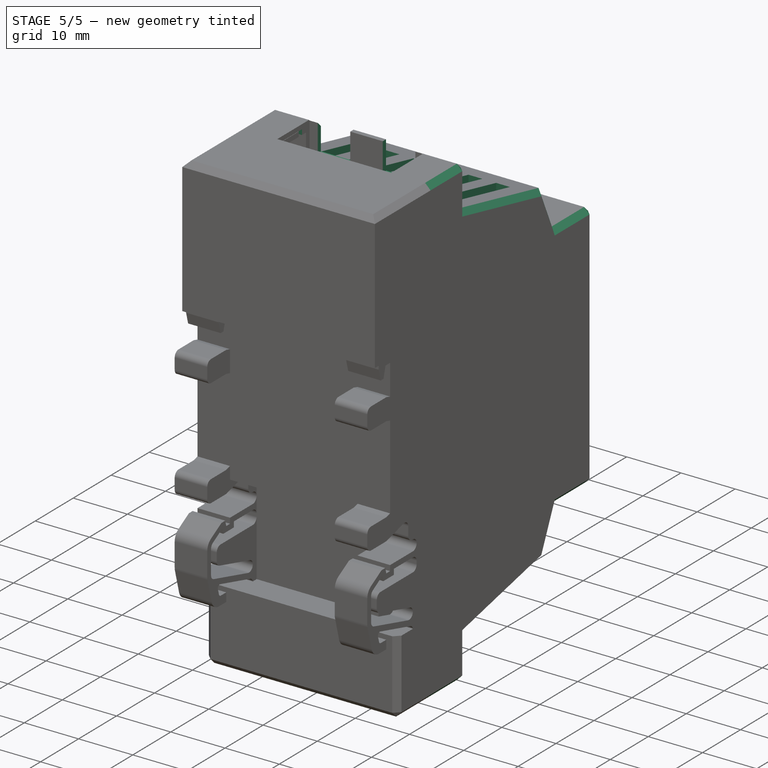
[diagram: stage 5 of 5 — iso view after this stage's code; geometry added in this stage tinted green]
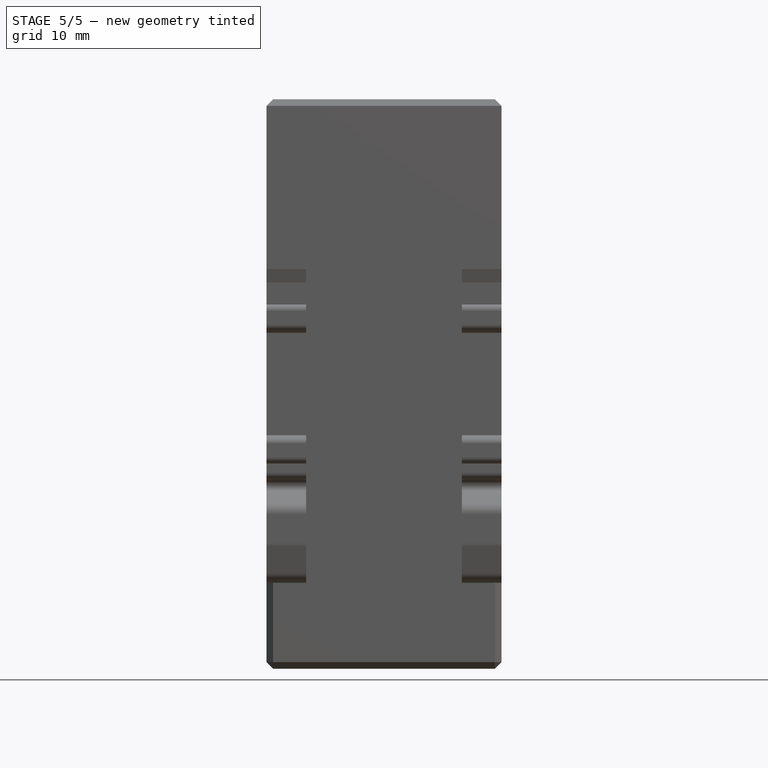
[diagram: stage 5 of 5 — front view after this stage's code; geometry added in this stage tinted green]
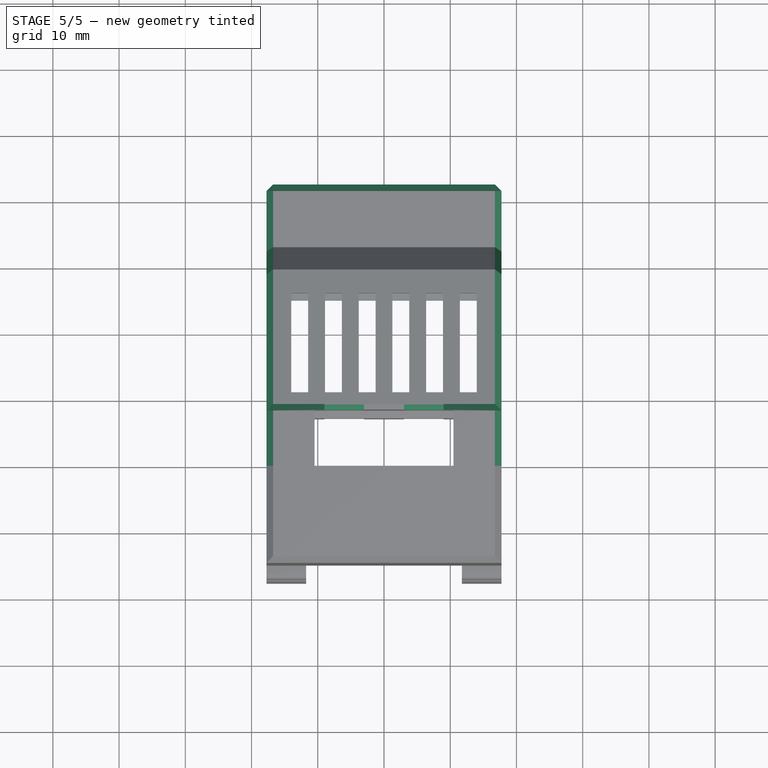
[diagram: stage 5 of 5 — top view after this stage's code; geometry added in this stage tinted green]
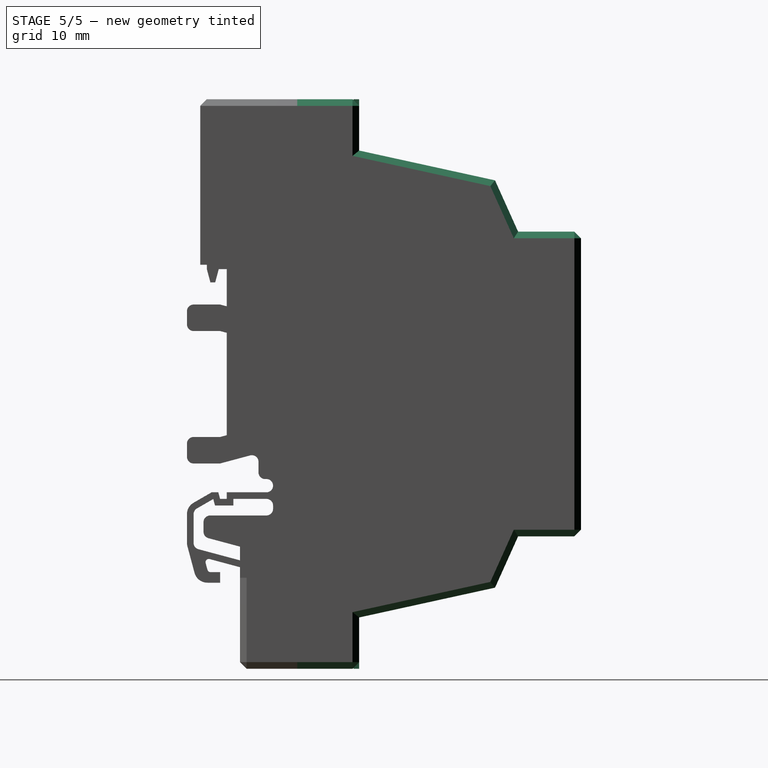
[diagram: stage 5 of 5 — right view after this stage's code; geometry added in this stage tinted green]
FEATURE [Sketcher::SketchObject] Sketch013
  ExternalGeometry = -> [Pocket008]
  FullyConstrained = true
  MapMode = 5
  Placement = pos=(-1.68e-14,38.1,-2.55e-14) rot=(0,0.707107,0.707107;3.14159rad)
  Support = -> [Pocket008]
  sketch-geometry (16):
    g0: LineSegment StartX=-9 StartY=-37.8 StartZ=0 EndX=-3 EndY=-37.8 EndZ=0
    g1: LineSegment StartX=-3 StartY=-37.8 StartZ=0 EndX=-3 EndY=-43 EndZ=0
    g2: LineSegment StartX=-3 StartY=-43 StartZ=0 EndX=-9 EndY=-43 EndZ=0
    g3: LineSegment StartX=-9 StartY=-43 StartZ=0 EndX=-9 EndY=-37.8 EndZ=0
    g4: LineSegment StartX=3 StartY=-37.8 StartZ=0 EndX=9 EndY=-37.8 EndZ=0
    g5: LineSegment StartX=9 StartY=-37.8 StartZ=0 EndX=9 EndY=-43 EndZ=0
    g6: LineSegment StartX=9 StartY=-43 StartZ=0 EndX=3 EndY=-43 EndZ=0
    g7: LineSegment StartX=3 StartY=-43 StartZ=0 EndX=3 EndY=-37.8 EndZ=0
    g8: LineSegment StartX=-9 StartY=37.8 StartZ=0 EndX=-3 EndY=37.8 EndZ=0
    g9: LineSegment StartX=-3 StartY=37.8 StartZ=0 EndX=-3 EndY=43 EndZ=0
    g10: LineSegment StartX=-3 StartY=43 StartZ=0 EndX=-9 EndY=43 EndZ=0
    g11: LineSegment StartX=-9 StartY=43 StartZ=0 EndX=-9 EndY=37.8 EndZ=0
    g12: LineSegment StartX=3 StartY=37.8 StartZ=0 EndX=9 EndY=37.8 EndZ=0
    g13: LineSegment StartX=9 StartY=37.8 StartZ=0 EndX=9 EndY=43 EndZ=0
    g14: LineSegment StartX=9 StartY=43 StartZ=0 EndX=3 EndY=43 EndZ=0
    g15: LineSegment StartX=3 StartY=43 StartZ=0 EndX=3 EndY=37.8 EndZ=0
  constraints (48):
    c: Coincident(g0,g1)
    c: Coincident(g1,g2)
    c: Coincident(g2,g3)
    c: Coincident(g3,g0)
    c: Horizontal(g0)
    c: Horizontal(g2)
    c: Vertical(g1)
    c: Vertical(g3)
    c: Coincident(g4,g5)
    c: Coincident(g5,g6)
    c: Coincident(g6,g7)
    c: Coincident(g7,g4)
    c: Horizontal(g4)
    c: Horizontal(g6)
    c: Vertical(g5)
    c: Vertical(g7)
    c: Coincident(g8,g9)
    c: Coincident(g9,g10)
    c: Coincident(g10,g11)
    c: Coincident(g11,g8)
    c: Horizontal(g8)
    c: Horizontal(g10)
    c: Vertical(g9)
    c: Vertical(g11)
    c: Coincident(g12,g13)
    c: Coincident(g13,g14)
    c: Coincident(g14,g15)
    c: Coincident(g15,g12)
    c: Horizontal(g12)
    c: Horizontal(g14)
    c: Vertical(g13)
    c: Vertical(g15)
    c: Equal(g1,g9)
    c: Equal(g9,g15)
    c: PointOnObject(g2,g-4)
    c: Horizontal(g6,g1)
    c: DistanceY(g1,g1) = 5.2
    c: DistanceX(g-2,g6) = 3
    c: DistanceX(g-2,g1) = -3
    c: PointOnObject(g9,g-3)
    c: Horizontal(g14,g9)
    c: DistanceX(g-2,g9) = -3
    c: DistanceX(g-2,g14) = 3
    c: Distance(g12) = 6
    c: Equal(g8,g12)
    c: Equal(g0,g4)
    c: Equal(g4,g12)
    c: Equal(g1,g5)
FEATURE [PartDesign::Pocket] Pocket009
  BaseFeature = -> Pocket008
  Length = 5
  Length2 = 100
  Profile = -> Sketch013
  Refine = true
  Type = 1
FEATURE [Sketcher::SketchObject] Sketch016
  ExternalGeometry = -> [Pocket009]
  FullyConstrained = true
  MapMode = 5
  Placement = pos=(0,28.75,-6e-15) rot=(1,0,0;1.5708rad)
  Support = -> [Pocket009]
  sketch-geometry (6):
    g0: LineSegment StartX=-16.9 StartY=42.15 StartZ=0 EndX=-10.5 EndY=42.15 EndZ=0
    g1: LineSegment StartX=-10.5 StartY=42.15 StartZ=0 EndX=-10.5 EndY=41.2 EndZ=0
    g2: LineSegment StartX=-10.5 StartY=41.2 StartZ=0 EndX=-15.95 EndY=41.2 EndZ=0
    g3: LineSegment StartX=-15.95 StartY=41.2 StartZ=0 EndX=-15.95 EndY=0 EndZ=0
    g4: LineSegment StartX=-15.95 StartY=0 StartZ=0 EndX=-16.9 EndY=0 EndZ=0
    g5: LineSegment StartX=-16.9 StartY=0 StartZ=0 EndX=-16.9 EndY=42.15 EndZ=0
  constraints (16):
    c: Horizontal(g0)
    c: Coincident(g0,g1)
    c: Coincident(g1,g-3)
    c: Coincident(g1,g2)
    c: Coincident(g2,g-4)
    c: Coincident(g2,g3)
    c: PointOnObject(g3,g-1)
    c: Vertical(g3)
    c: Coincident(g3,g4)
    c: PointOnObject(g4,g-1)
    c: Coincident(g4,g5)
    c: Coincident(g5,g0)
    c: Vertical(g5)
    c: Vertical(g1)
    c: DistanceX(g0,g2) = 0.95
    c: DistanceY(g2,g0) = 0.95
FEATURE [PartDesign::Pocket] Pocket011  label="Wall001"
  BaseFeature = -> Pocket009
  Length = 6.5
  Length2 = 100
  Profile = -> Sketch016
  Refine = true
  Type = 0
FEATURE [Sketcher::SketchObject] Sketch017
  ExternalGeometry = -> [Pocket011]
  FullyConstrained = true
  MapMode = 5
  Placement = pos=(0,0,3e-16) rot=(0,0,1;0rad)
  Support = -> [Pocket011]
  sketch-geometry (2):
    g0: ArcOfCircle CenterX=-16.9 CenterY=31.75 CenterZ=0 NormalX=0 NormalY=0 NormalZ=1 AngleXU=0 Radius=0.5 StartAngle=1.5708 EndAngle=4.71239
    g1: LineSegment StartX=-16.9 StartY=31.25 StartZ=0 EndX=-16.9 EndY=32.25 EndZ=0
  constraints (7):
    c: Coincident(g1,g0)
    c: Coincident(g1,g0)
    c: Vertical(g1)
    c: PointOnObject(g0,g1)
    c: Diameter(g0) = 1
    c: PointOnObject(g0,g-3)
    c: Distance(g0,g-3) = 3
FEATURE [PartDesign::Pocket] Pocket012  label="Cut001"
  BaseFeature = -> Pocket011
  Length = 30
  Length2 = 100
  Profile = -> Sketch017
  Refine = true
  Reversed = true
  Type = 0
FEATURE [PartDesign::Pad] Pad006  label="Pin001"
  BaseFeature = -> Pocket012
  Direction = (0,2e-16,1)
  Length = 20
  Length2 = 100
  Profile = -> Sketch017
  Refine = true
  Type = 0
FEATURE [PartDesign::Mirrored] Mirrored003
  MirrorPlane = -> YZ_Plane038
  Overlap = 0
  Refine = true
FEATURE [PartDesign::Mirrored] Mirrored004
  MirrorPlane = -> XY_Plane038
  Overlap = 0
  Refine = true
FEATURE [PartDesign::MultiTransform] MultiTransform001
  BaseFeature = -> Pad006
  Originals = -> [Pocket011,Pocket012,Pad006]
  Overlap = 0
  Refine = true
  Transformations = -> [Mirrored003,Mirrored004]
FEATURE [PartDesign::Chamfer] Chamfer
  Angle = 45
  Base = -> MultiTransform001 [Edge79,Edge42,Edge41,Edge39,Edge37,Edge35,Edge33,Edge31,Edge29,Edge18,Edge80,Edge1,Edge2,Edge3,Edge4,Edge5,Edge6,Edge7,Edge8,Edge9,Edge10,Edge11,Edge32,Edge34,Edge27,Edge13,Edge43,Edge51]
  BaseFeature = -> MultiTransform001
  ChamferType = 0
  FlipDirection = false
  Refine = true
  Size = 1
  Size2 = 1
  SupportTransform = false
FEATURE [Sketcher::SketchObject] Sketch018
  FullyConstrained = true
  MapMode = 5
  Support = -> [XY_Plane038]
  sketch-geometry (29):
    g0: LineSegment StartX=-14 StartY=40 StartZ=0 EndX=-11.4545 EndY=40 EndZ=0
    g1: LineSegment StartX=-11.4545 StartY=40 StartZ=0 EndX=-11.4545 EndY=55 EndZ=0
    g2: LineSegment StartX=-11.4545 StartY=55 StartZ=0 EndX=-14 EndY=55 EndZ=0
    g3: LineSegment StartX=-14 StartY=55 StartZ=0 EndX=-14 EndY=40 EndZ=0
    g4: LineSegment StartX=-8.90909 StartY=40 StartZ=0 EndX=-6.36364 EndY=40 EndZ=0
    g5: LineSegment StartX=-6.36364 StartY=40 StartZ=0 EndX=-6.36364 EndY=55 EndZ=0
    g6: LineSegment StartX=-6.36364 StartY=55 StartZ=0 EndX=-8.90909 EndY=55 EndZ=0
    g7: LineSegment StartX=-8.90909 StartY=55 StartZ=0 EndX=-8.90909 EndY=40 EndZ=0
    g8: LineSegment StartX=-3.81818 StartY=40 StartZ=0 EndX=-1.27273 EndY=40 EndZ=0
    g9: LineSegment StartX=-1.27273 StartY=40 StartZ=0 EndX=-1.27273 EndY=55 EndZ=0
    g10: LineSegment StartX=-1.27273 StartY=55 StartZ=0 EndX=-3.81818 EndY=55 EndZ=0
    g11: LineSegment StartX=-3.81818 StartY=55 StartZ=0 EndX=-3.81818 EndY=40 EndZ=0
    g12: LineSegment StartX=1.27273 StartY=55 StartZ=0 EndX=3.81818 EndY=55 EndZ=0
    g13: LineSegment StartX=3.81818 StartY=55 StartZ=0 EndX=3.81818 EndY=40 EndZ=0
    g14: LineSegment StartX=3.81818 StartY=40 StartZ=0 EndX=1.27273 EndY=40 EndZ=0
    g15: LineSegment StartX=1.27273 StartY=40 StartZ=0 EndX=1.27273 EndY=55 EndZ=0
    g16: LineSegment StartX=6.36364 StartY=40 StartZ=0 EndX=8.90909 EndY=40 EndZ=0
    g17: LineSegment StartX=8.90909 StartY=40 StartZ=0 EndX=8.90909 EndY=55 EndZ=0
    g18: LineSegment StartX=8.90909 StartY=55 StartZ=0 EndX=6.36364 EndY=55 EndZ=0
    g19: LineSegment StartX=6.36364 StartY=55 StartZ=0 EndX=6.36364 EndY=40 EndZ=0
    g20: LineSegment StartX=11.4545 StartY=55 StartZ=0 EndX=14 EndY=55 EndZ=0
    g21: LineSegment StartX=14 StartY=55 StartZ=0 EndX=14 EndY=40 EndZ=0
    g22: LineSegment StartX=14 StartY=40 StartZ=0 EndX=11.4545 EndY=40 EndZ=0
    g23: LineSegment StartX=11.4545 StartY=40 StartZ=0 EndX=11.4545 EndY=55 EndZ=0
    g24: LineSegment StartX=-11.4545 StartY=40 StartZ=0 EndX=-8.90909 EndY=40 EndZ=0
    g25: LineSegment StartX=-6.36364 StartY=40 StartZ=0 EndX=-3.81818 EndY=40 EndZ=0
    g26: LineSegment StartX=-1.27273 StartY=40 StartZ=0 EndX=1.27273 EndY=40 EndZ=0
    g27: LineSegment StartX=3.81818 StartY=40 StartZ=0 EndX=6.36364 EndY=40 EndZ=0
    g28: LineSegment StartX=8.90909 StartY=40 StartZ=0 EndX=11.4545 EndY=40 EndZ=0
  constraints (81):
    c: Coincident(g0,g1)
    c: Coincident(g1,g2)
    c: Coincident(g2,g3)
    c: Coincident(g3,g0)
    c: Horizontal(g0)
    c: Horizontal(g2)
    c: Vertical(g1)
    c: Vertical(g3)
    c: Coincident(g4,g5)
    c: Coincident(g5,g6)
    c: Coincident(g6,g7)
    c: Coincident(g7,g4)
    c: Horizontal(g4)
    c: Horizontal(g6)
    c: Vertical(g5)
    c: Vertical(g7)
    c: Coincident(g8,g9)
    c: Coincident(g9,g10)
    c: Coincident(g10,g11)
    c: Coincident(g11,g8)
    c: Horizontal(g8)
    c: Horizontal(g10)
    c: Vertical(g9)
    c: Vertical(g11)
    c: Coincident(g12,g13)
    c: Coincident(g13,g14)
    c: Coincident(g14,g15)
    c: Coincident(g15,g12)
    c: Horizontal(g12)
    c: Horizontal(g14)
    c: Vertical(g13)
    c: Vertical(g15)
    c: Coincident(g16,g17)
    c: Coincident(g17,g18)
    c: Coincident(g18,g19)
    c: Coincident(g19,g16)
    c: Horizontal(g16)
    c: Horizontal(g18)
    c: Vertical(g17)
    c: Vertical(g19)
    c: Coincident(g20,g21)
    c: Coincident(g21,g22)
    c: Coincident(g22,g23)
    c: Coincident(g23,g20)
    c: Horizontal(g20)
    c: Horizontal(g22)
    c: Vertical(g21)
    c: Vertical(g23)
    c: Horizontal(g2,g6)
    c: Horizontal(g6,g10)
    c: Horizontal(g10,g12)
    c: Horizontal(g12,g18)
    c: Horizontal(g18,g20)
    c: Horizontal(g0,g4)
    c: Horizontal(g4,g8)
    c: Horizontal(g8,g13)
    c: Horizontal(g13,g16)
    c: Equal(g0,g4)
    c: Equal(g4,g8)
    c: Equal(g8,g14)
    c: Equal(g14,g16)
    c: Equal(g16,g22)
    c: Coincident(g24,g0)
    c: Coincident(g24,g4)
    c: Coincident(g25,g4)
    c: Coincident(g25,g8)
    c: Coincident(g26,g8)
    c: Coincident(g26,g14)
    c: Coincident(g27,g13)
    c: Coincident(g27,g16)
    c: Coincident(g28,g16)
    c: Coincident(g28,g22)
    c: Equal(g24,g25)
    c: Equal(g25,g26)
    c: Equal(g26,g27)
    c: Equal(g27,g28)
    c: Equal(g28,g0)
    c: Symmetric(g0,g21,g-2)
    c: Distance(g1) = 15
    c: DistanceY(g-1,g8) = 40
    c: Distance(g0,g21) = 28
FEATURE [PartDesign::Pocket] Pocket013
  BaseFeature = -> Chamfer
  Length = 5
  Length2 = 100
  Midplane = true
  Profile = -> Sketch018
  Refine = true
  Type = 1
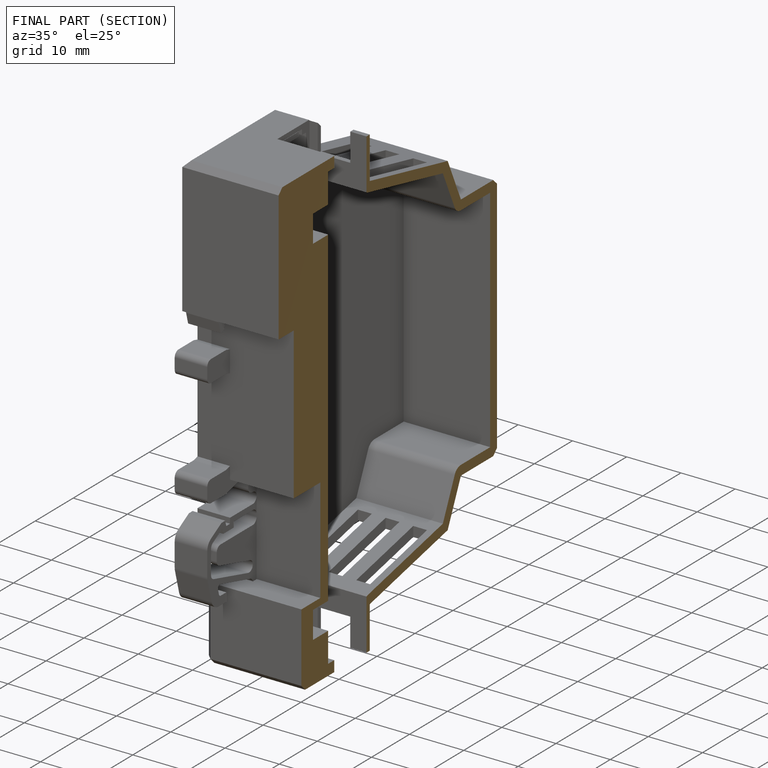
[diagram: finished part — half-section view (interior)]
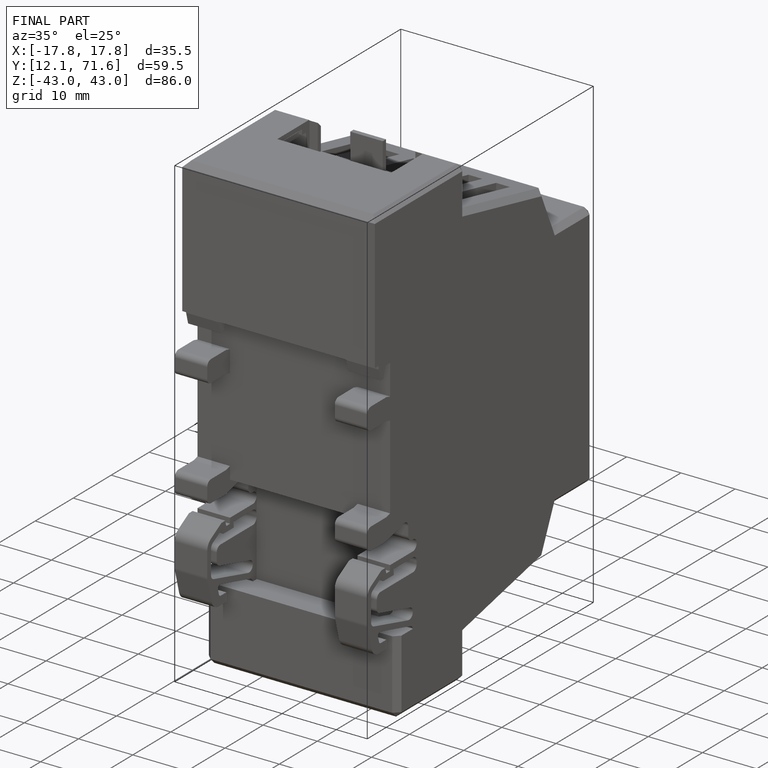
[diagram: finished part — iso view with bounding-box wireframe]
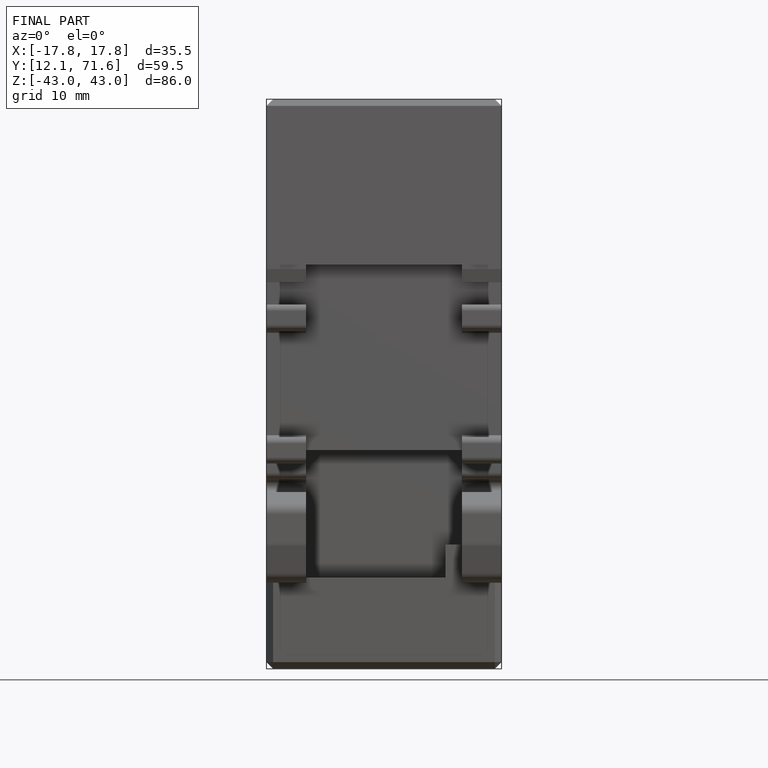
[diagram: finished part — front view with bounding-box wireframe]
